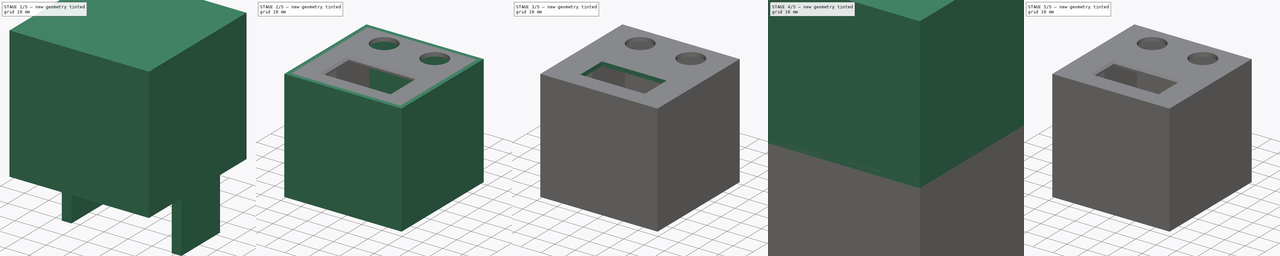
[diagram: build sequence overview — one tinted view per stage of 5, left to right]
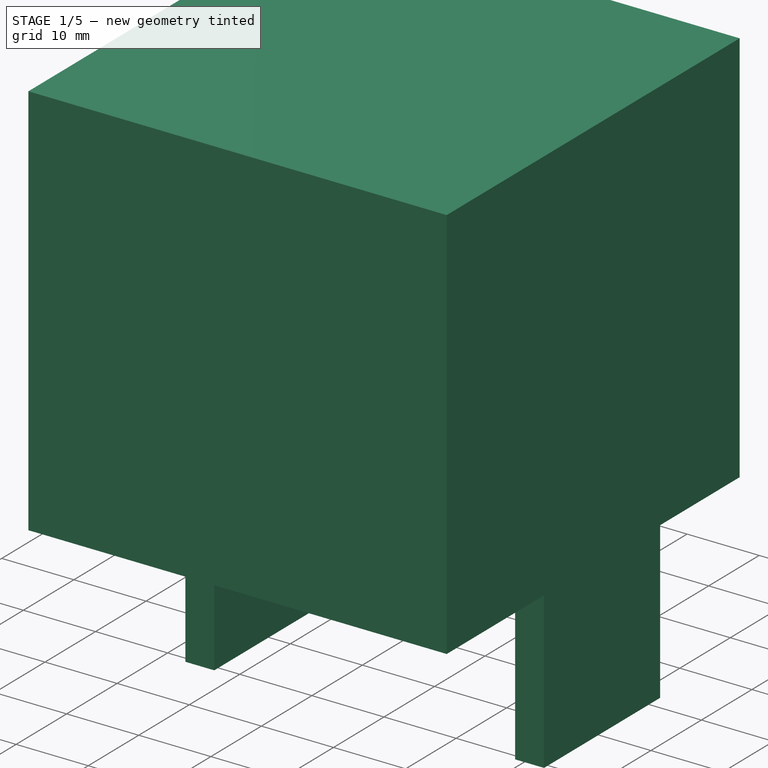
[diagram: stage 1 of 5 — iso view after this stage's code; geometry added in this stage tinted green]
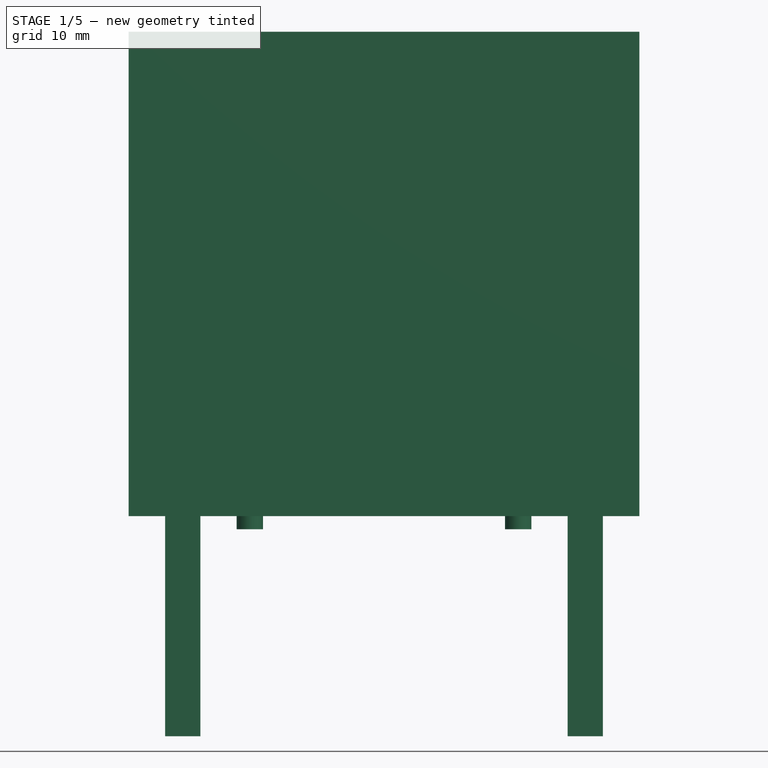
[diagram: stage 1 of 5 — front view after this stage's code; geometry added in this stage tinted green]
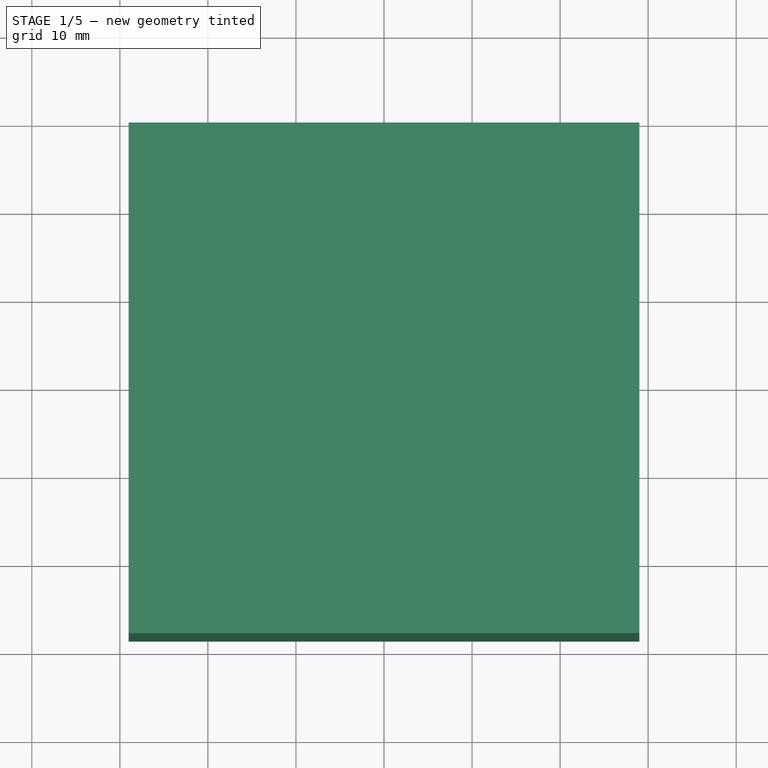
[diagram: stage 1 of 5 — top view after this stage's code; geometry added in this stage tinted green]
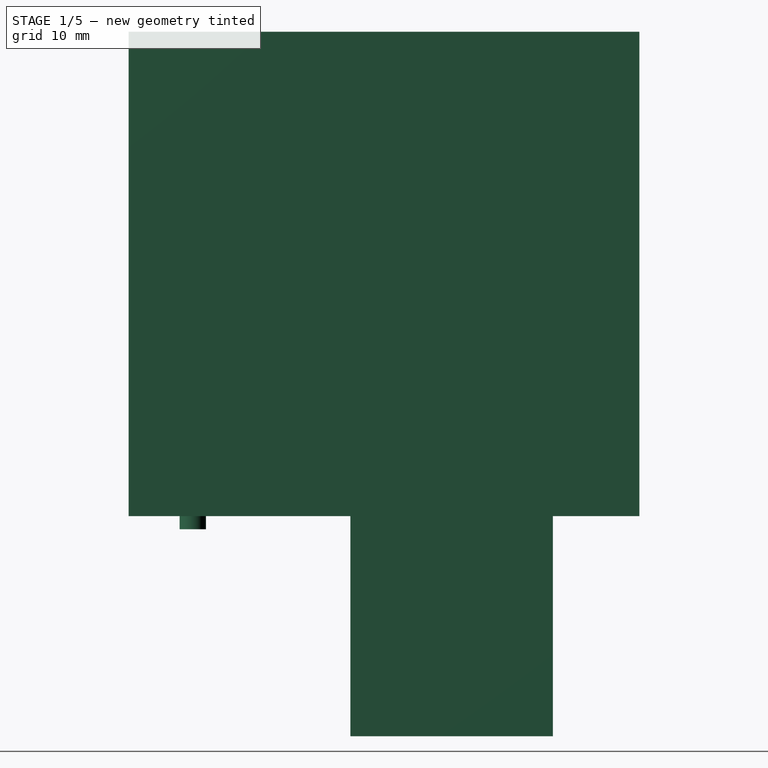
[diagram: stage 1 of 5 — right view after this stage's code; geometry added in this stage tinted green]
FCSTD DOCUMENT  (FreeCAD 0.18R4 (GitTag))
Label: case
License: All rights reserved
LicenseURL: http://en.wikipedia.org/wiki/All_rights_reserved
objects: Sketcher::SketchObject×15, PartDesign::Pocket×9, PartDesign::Pad×6, Part::Box×6, Part::FeaturePython×6, PartDesign::Body×4, PartDesign::Chamfer×2, App::Part×2
note: 63 computed .brp shape members not serialized (recipe doc carries the construction recipe); baked Part::Feature solids carry a one-line shape summary decoded from their .brp

FEATURE [Sketcher::SketchObject] Sketch009
  MapMode = 5
  Support = -> [XY_Plane003]
  sketch-geometry (4):
    g0: LineSegment StartX=-27 StartY=27 StartZ=0 EndX=27 EndY=27 EndZ=0
    g1: LineSegment StartX=27 StartY=27 StartZ=0 EndX=27 EndY=-27 EndZ=0
    g2: LineSegment StartX=27 StartY=-27 StartZ=0 EndX=-27 EndY=-27 EndZ=0
    g3: LineSegment StartX=-27 StartY=-27 StartZ=0 EndX=-27 EndY=27 EndZ=0
  constraints (10):
    c: Coincident(g0,g1)
    c: Coincident(g1,g2)
    c: Coincident(g2,g3)
    c: Coincident(g3,g0)
    c: Horizontal(g2)
    c: Vertical(g1)
    c: Symmetric(g0,g0,g-2)
    c: Symmetric(g0,g2,g-1)
    c: DistanceX(g0,g0) = 54
    c: DistanceY(g2,g0) = 54
FEATURE [PartDesign::Pad] Pad002
  Length = 2
  Length2 = 100
  Profile = -> Sketch009
  Refine = true
  Type = 0
FEATURE [Sketcher::SketchObject] Sketch008
  MapMode = 5
  Placement = pos=(0,0,2) rot=(0,0,1;0rad)
  Support = -> [Pad002]
  sketch-geometry (11):
    g0: Circle CenterX=-12.5 CenterY=18 CenterZ=0 NormalX=0 NormalY=0 NormalZ=1 AngleXU=0 Radius=6.25
    g1: Circle CenterX=12.5 CenterY=18 CenterZ=0 NormalX=0 NormalY=0 NormalZ=1 AngleXU=0 Radius=6.25
    g2: LineSegment [constr] StartX=-12.5 StartY=18 StartZ=0 EndX=12.5 EndY=18 EndZ=0
    g3: LineSegment [constr] StartX=-15.24 StartY=6.23 StartZ=0 EndX=15.24 EndY=6.23 EndZ=0
    g4: LineSegment [constr] StartX=15.24 StartY=6.23 StartZ=0 EndX=15.24 EndY=-21.71 EndZ=0
    g5: LineSegment [constr] StartX=15.24 StartY=-21.71 StartZ=0 EndX=-15.24 EndY=-21.71 EndZ=0
    g6: LineSegment [constr] StartX=-15.24 StartY=-21.71 StartZ=0 EndX=-15.24 EndY=6.23 EndZ=0
    g7: LineSegment StartX=-16.5 StartY=-1 StartZ=0 EndX=16.5 EndY=-1 EndZ=0
    g8: LineSegment StartX=16.5 StartY=-1 StartZ=0 EndX=16.5 EndY=-19.3 EndZ=0
    g9: LineSegment StartX=16.5 StartY=-19.3 StartZ=0 EndX=-16.5 EndY=-19.3 EndZ=0
    g10: LineSegment StartX=-16.5 StartY=-19.3 StartZ=0 EndX=-16.5 EndY=-1 EndZ=0
  constraints (29):
    c: Diameter(g0) = 12.5
    c: DistanceY(g-1,g0) = 18
    c: Equal(g0,g1)
    c: DistanceX(g2,g2) = 25
    c: Coincident(g2,g0)
    c: Coincident(g2,g1)
    c: Symmetric(g0,g1,g-2)
    c: Coincident(g3,g4)
    c: Coincident(g4,g5)
    c: Coincident(g5,g6)
    c: Coincident(g6,g3)
    c: Horizontal(g5)
    c: Vertical(g4)
    c: Vertical(g6)
    c: DistanceX(g3,g3) = 30.48
    c: DistanceY(g5,g3) = 27.94
    c: Symmetric(g3,g3,g-2)
    c: Coincident(g7,g8)
    c: Coincident(g8,g9)
    c: Coincident(g9,g10)
    c: Coincident(g10,g7)
    c: Horizontal(g9)
    c: Vertical(g8)
    c: Vertical(g10)
    c: Symmetric(g7,g7,g-2)
    c: DistanceX(g7,g7) = 33
    c: DistanceY(g9,g7) = 18.3
    c: DistanceY(g7,g-1) = 1
    c: DistanceY(g-1,g3) = 6.23
FEATURE [PartDesign::Pocket] Pocket006
  BaseFeature = -> Pad002
  Length = 2
  Length2 = 100
  Profile = -> Sketch008
  Refine = true
  Type = 0
FEATURE [Sketcher::SketchObject] Sketch010
  MapMode = 5
  Support = -> [XY_Plane004]
  sketch-geometry (4):
    g0: LineSegment StartX=-29 StartY=29 StartZ=0 EndX=29 EndY=29 EndZ=0
    g1: LineSegment StartX=29 StartY=29 StartZ=0 EndX=29 EndY=-29 EndZ=0
    g2: LineSegment StartX=29 StartY=-29 StartZ=0 EndX=-29 EndY=-29 EndZ=0
    g3: LineSegment StartX=-29 StartY=-29 StartZ=0 EndX=-29 EndY=29 EndZ=0
  constraints (10):
    c: Coincident(g0,g1)
    c: Coincident(g1,g2)
    c: Coincident(g2,g3)
    c: Coincident(g3,g0)
    c: Horizontal(g2)
    c: Vertical(g1)
    c: Symmetric(g0,g0,g-2)
    c: Symmetric(g0,g2,g-1)
    c: DistanceX(g0,g0) = 58
    c: DistanceY(g2,g0) = 58
FEATURE [PartDesign::Pad] Pad003
  Length = 55
  Length2 = 100
  Profile = -> Sketch010
  Refine = true
  Type = 0
FEATURE [Sketcher::SketchObject] Sketch013
  MapMode = 5
  Placement = pos=(0,0,0) rot=(1,0,0;3.14159rad)
  Support = -> [Pocket006]
  sketch-geometry (8):
    g0: LineSegment [constr] StartX=-15.24 StartY=21.71 StartZ=0 EndX=15.24 EndY=21.71 EndZ=0
    g1: LineSegment [constr] StartX=15.24 StartY=21.71 StartZ=0 EndX=15.24 EndY=-6.23 EndZ=0
    g2: LineSegment [constr] StartX=15.24 StartY=-6.23 StartZ=0 EndX=-15.24 EndY=-6.23 EndZ=0
    g3: LineSegment [constr] StartX=-15.24 StartY=-6.23 StartZ=0 EndX=-15.24 EndY=21.71 EndZ=0
    g4: Circle CenterX=-15.24 CenterY=21.71 CenterZ=0 NormalX=0 NormalY=0 NormalZ=1 AngleXU=0 Radius=1.5
    g5: Circle CenterX=15.24 CenterY=21.71 CenterZ=0 NormalX=0 NormalY=0 NormalZ=1 AngleXU=0 Radius=1.5
    g6: Circle CenterX=15.24 CenterY=-6.23 CenterZ=0 NormalX=0 NormalY=0 NormalZ=1 AngleXU=0 Radius=1.5
    g7: Circle CenterX=-15.24 CenterY=-6.23 CenterZ=0 NormalX=0 NormalY=0 NormalZ=1 AngleXU=0 Radius=1.5
  constraints (19):
    c: Coincident(g0,g1)
    c: Coincident(g1,g2)
    c: Coincident(g2,g3)
    c: Coincident(g3,g0)
    c: Horizontal(g2)
    c: Vertical(g1)
    c: Vertical(g3)
    c: DistanceX(g0,g0) = 30.48
    c: DistanceY(g2,g0) = 27.94
    c: Symmetric(g0,g0,g-2)
    c: DistanceY(g2,g-1) = 6.23
    c: Coincident(g4,g0)
    c: Coincident(g5,g0)
    c: Coincident(g6,g1)
    c: Coincident(g7,g2)
    c: Diameter(g4) = 3
    c: Equal(g4,g5)
    c: Equal(g4,g7)
    c: Equal(g4,g6)
FEATURE [PartDesign::Pad] Pad004
  BaseFeature = -> Pocket006
  Length = 1.5
  Length2 = 100
  Profile = -> Sketch013
  Refine = true
  Type = 0
FEATURE [Sketcher::SketchObject] Sketch014
  MapMode = 5
  Placement = pos=(0,0,0) rot=(1,0,0;3.14159rad)
  Support = -> [Pad004]
  sketch-geometry (12):
    g0: LineSegment [constr] StartX=-22.86 StartY=1.6 StartZ=0 EndX=22.86 EndY=1.6 EndZ=0
    g1: LineSegment [constr] StartX=22.86 StartY=1.6 StartZ=0 EndX=22.86 EndY=-16.18 EndZ=0
    g2: LineSegment [constr] StartX=22.86 StartY=-16.18 StartZ=0 EndX=-22.86 EndY=-16.18 EndZ=0
    g3: LineSegment [constr] StartX=-22.86 StartY=-16.18 StartZ=0 EndX=-22.86 EndY=1.6 EndZ=0
    g4: LineSegment StartX=-24.86 StartY=3.82 StartZ=0 EndX=-20.86 EndY=3.82 EndZ=0
    g5: LineSegment StartX=-20.86 StartY=3.82 StartZ=0 EndX=-20.86 EndY=-19.18 EndZ=0
    g6: LineSegment StartX=-20.86 StartY=-19.18 StartZ=0 EndX=-24.86 EndY=-19.18 EndZ=0
    g7: LineSegment StartX=-24.86 StartY=-19.18 StartZ=0 EndX=-24.86 EndY=3.82 EndZ=0
    g8: LineSegment StartX=20.86 StartY=3.82 StartZ=0 EndX=24.86 EndY=3.82 EndZ=0
    g9: LineSegment StartX=24.86 StartY=3.82 StartZ=0 EndX=24.86 EndY=-19.18 EndZ=0
    g10: LineSegment StartX=24.86 StartY=-19.18 StartZ=0 EndX=20.86 EndY=-19.18 EndZ=0
    g11: LineSegment StartX=20.86 StartY=-19.18 StartZ=0 EndX=20.86 EndY=3.82 EndZ=0
  constraints (33):
    c: Coincident(g0,g1)
    c: Coincident(g1,g2)
    c: Coincident(g2,g3)
    c: Coincident(g3,g0)
    c: Horizontal(g2)
    c: Vertical(g1)
    c: Vertical(g3)
    c: DistanceX(g0,g0) = 45.72
    c: Symmetric(g0,g0,g-2)
    c: DistanceY(g2,g0) = 17.78
    c: DistanceY(g-1,g0) = 1.6
    c: Coincident(g4,g5)
    c: Coincident(g5,g6)
    c: Coincident(g6,g7)
    c: Coincident(g7,g4)
    c: Horizontal(g6)
    c: Vertical(g5)
    c: Vertical(g7)
    c: Coincident(g8,g9)
    c: Coincident(g9,g10)
    c: Coincident(g10,g11)
    c: Coincident(g11,g8)
    c: Horizontal(g10)
    c: Vertical(g9)
    c: Vertical(g11)
    c: DistanceX(g4,g4) = 4
    c: DistanceY(g5,g4) = 23
    c: DistanceY(g5,g2) = 3
    c: Symmetric(g4,g4,g3)
    c: Equal(g5,g11)
    c: Equal(g6,g10)
    c: Symmetric(g8,g8,g1)
    c: DistanceY(g10,g1) = 3
FEATURE [PartDesign::Pad] Pad005
  BaseFeature = -> Pad004
  Length = 25
  Length2 = 100
  Profile = -> Sketch014
  Refine = true
  Type = 0
FEATURE [PartDesign::Chamfer] Chamfer001
  Base = -> Pad005 [Edge35,Edge36,Edge33,Edge34]
  BaseFeature = -> Pad005
  Size = 1
FEATURE [PartDesign::Body] Body002  label="Lid_SSD"
  Group = -> [Sketch009,Pad002,Sketch008,Pocket006,Sketch013,Pad004,Sketch014,Pad005,Chamfer001]
  Origin = -> Origin005
  Tip = -> Chamfer001
FEATURE [App::Part] Part001  label="SSD"
  Group = -> [Body002,Box003,Box004,Box005,XOR003,XOR004,Body003,XOR005]
  Origin = -> Origin003
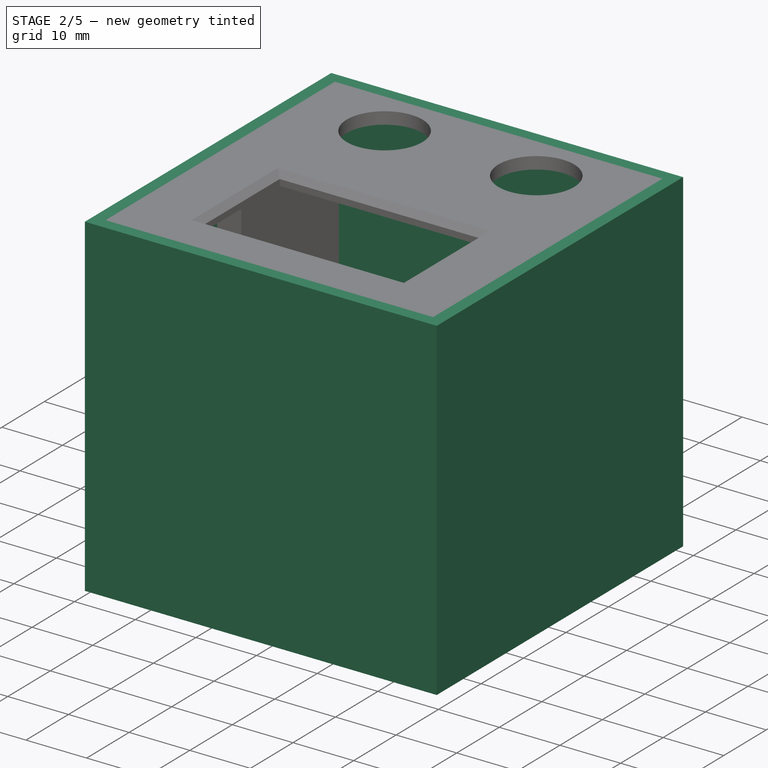
[diagram: stage 2 of 5 — iso view after this stage's code; geometry added in this stage tinted green]
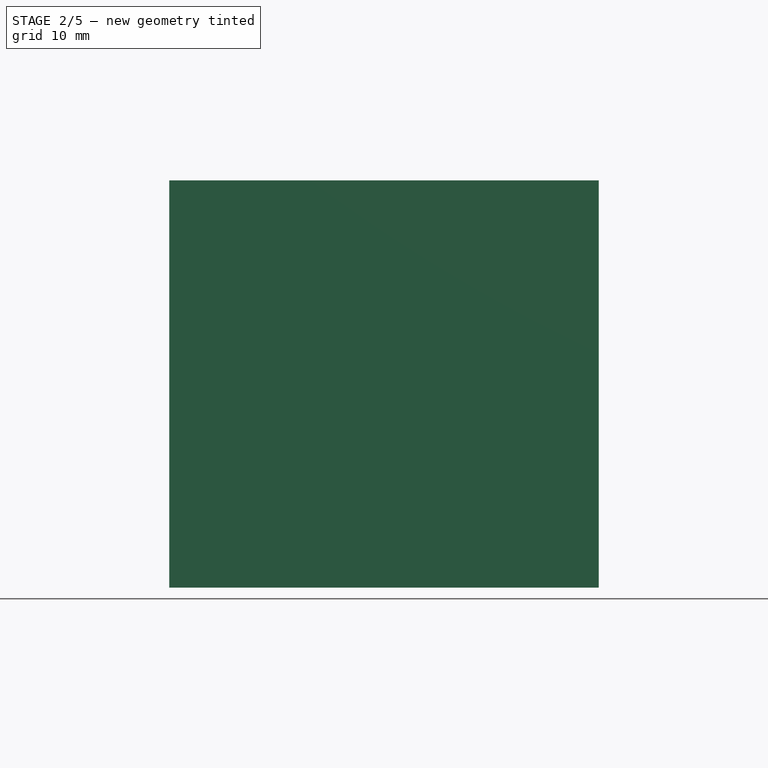
[diagram: stage 2 of 5 — front view after this stage's code; geometry added in this stage tinted green]
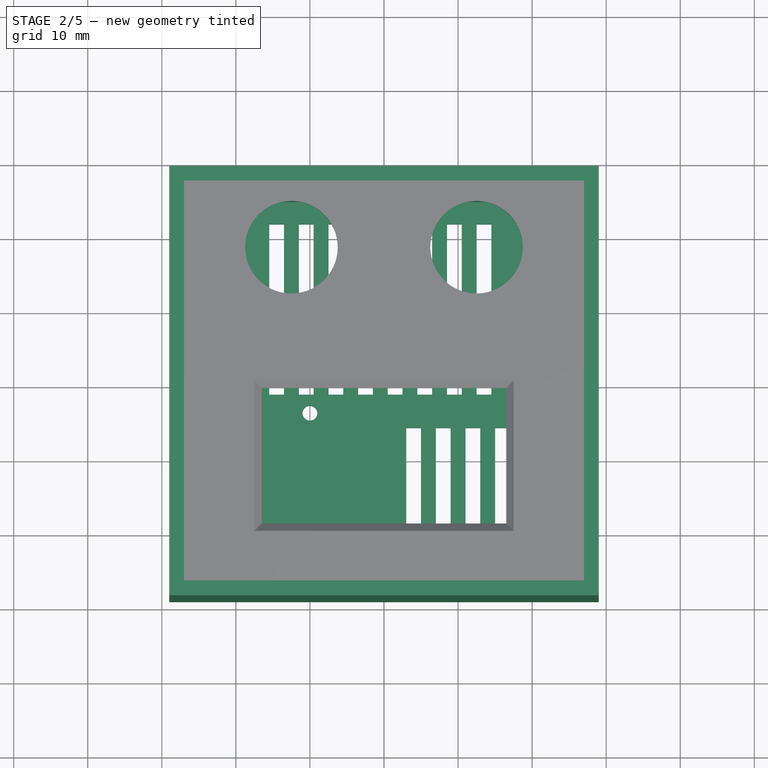
[diagram: stage 2 of 5 — top view after this stage's code; geometry added in this stage tinted green]
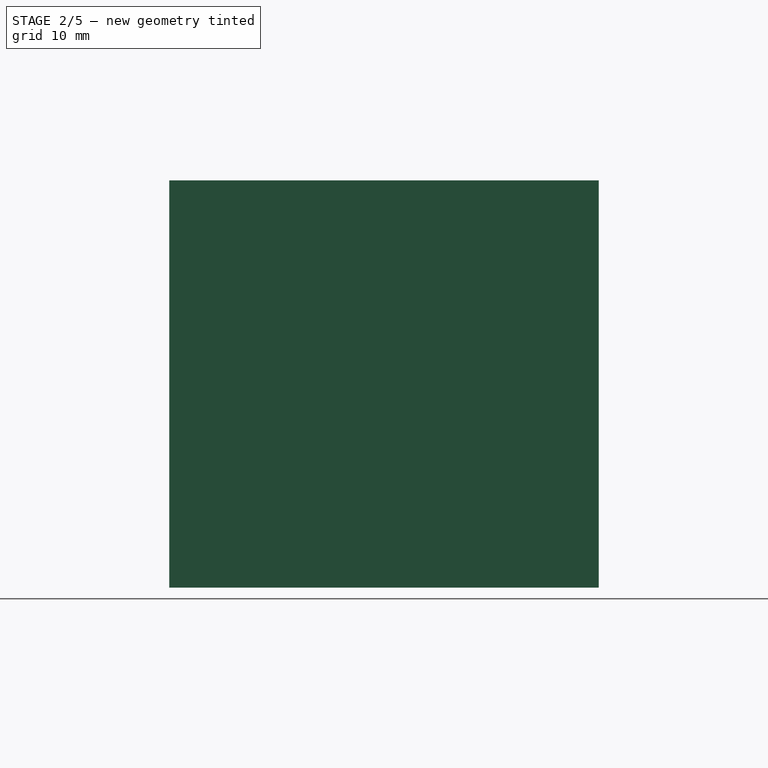
[diagram: stage 2 of 5 — right view after this stage's code; geometry added in this stage tinted green]
FEATURE [PartDesign::Body] Body  label="Lid"
  Group = -> [Sketch,Pad,Sketch001,Pocket,Chamfer,Sketch006,Pocket004]
  Origin = -> Origin
  Tip = -> Pocket004
FEATURE [App::Part] Part  label="Feather"
  Group = -> [Body,Box001,Box002,Box,XOR,XOR001,Body001,XOR002]
  Origin = -> Origin002
FEATURE [Part::Box] Box003  label="Würfel003"
  AttacherType = Attacher::AttachEngine3D
  Height = 40
  Length = 2
  Placement = pos=(25,-6,-40) rot=(0,0,1;0rad)
  Width = 29
FEATURE [Part::Box] Box005  label="Würfel005"
  AttacherType = Attacher::AttachEngine3D
  Height = 40
  Length = 2
  Placement = pos=(-27,-6,-40) rot=(0,0,1;0rad)
  Width = 29
FEATURE [Sketcher::SketchObject] Sketch011
  MapMode = 5
  Placement = pos=(0,0,55) rot=(0,0,1;0rad)
  Support = -> [Pad003]
  sketch-geometry (4):
    g0: LineSegment StartX=-27 StartY=27 StartZ=0 EndX=27 EndY=27 EndZ=0
    g1: LineSegment StartX=27 StartY=27 StartZ=0 EndX=27 EndY=-27 EndZ=0
    g2: LineSegment StartX=27 StartY=-27 StartZ=0 EndX=-27 EndY=-27 EndZ=0
    g3: LineSegment StartX=-27 StartY=-27 StartZ=0 EndX=-27 EndY=27 EndZ=0
  constraints (10):
    c: Coincident(g0,g1)
    c: Coincident(g1,g2)
    c: Coincident(g2,g3)
    c: Coincident(g3,g0)
    c: Horizontal(g2)
    c: Vertical(g1)
    c: Symmetric(g0,g0,g-2)
    c: Symmetric(g0,g2,g-1)
    c: DistanceX(g0,g0) = 54
    c: DistanceY(g2,g0) = 54
FEATURE [PartDesign::Pocket] Pocket007
  BaseFeature = -> Pad003
  Length = 2
  Length2 = 100
  Profile = -> Sketch011
  Refine = true
  Type = 0
FEATURE [Sketcher::SketchObject] Sketch012
  MapMode = 5
  Placement = pos=(0,0,53) rot=(0,0,1;0rad)
  Support = -> [Pocket007]
  sketch-geometry (4):
    g0: LineSegment StartX=-25 StartY=25 StartZ=0 EndX=25 EndY=25 EndZ=0
    g1: LineSegment StartX=25 StartY=25 StartZ=0 EndX=25 EndY=-25 EndZ=0
    g2: LineSegment StartX=25 StartY=-25 StartZ=0 EndX=-25 EndY=-25 EndZ=0
    g3: LineSegment StartX=-25 StartY=-25 StartZ=0 EndX=-25 EndY=25 EndZ=0
  constraints (10):
    c: Coincident(g0,g1)
    c: Coincident(g1,g2)
    c: Coincident(g2,g3)
    c: Coincident(g3,g0)
    c: Horizontal(g2)
    c: Vertical(g1)
    c: Symmetric(g0,g0,g-2)
    c: Symmetric(g0,g2,g-1)
    c: DistanceX(g0,g0) = 50
    c: DistanceY(g2,g0) = 50
FEATURE [PartDesign::Pocket] Pocket008
  BaseFeature = -> Pocket007
  Length = 50
  Length2 = 100
  Profile = -> Sketch012
  Refine = true
  Type = 0
FEATURE [Sketcher::SketchObject] Sketch007
  MapMode = 5
  Placement = pos=(0,0,3) rot=(0,0,1;0rad)
  Support = -> [Pocket008]
  sketch-geometry (59):
    g0: LineSegment [constr] StartX=-17.5 StartY=22 StartZ=0 EndX=17.5 EndY=22 EndZ=0
    g1: LineSegment [constr] StartX=17.5 StartY=22 StartZ=0 EndX=17.5 EndY=-1 EndZ=0
    g2: LineSegment [constr] StartX=17.5 StartY=-1 StartZ=0 EndX=-17.5 EndY=-1 EndZ=0
    g3: LineSegment [constr] StartX=-17.5 StartY=-1 StartZ=0 EndX=-17.5 EndY=22 EndZ=0
    g4: LineSegment [constr] StartX=-20 StartY=-3.5 StartZ=0 EndX=20 EndY=-3.5 EndZ=0
    g5: LineSegment [constr] StartX=20 StartY=-3.5 StartZ=0 EndX=20 EndY=-23.5 EndZ=0
    g6: LineSegment [constr] StartX=20 StartY=-23.5 StartZ=0 EndX=-20 EndY=-23.5 EndZ=0
    g7: LineSegment [constr] StartX=-20 StartY=-23.5 StartZ=0 EndX=-20 EndY=-3.5 EndZ=0
    g8: LineSegment StartX=17 StartY=-20.5 StartZ=0 EndX=15 EndY=-20.5 EndZ=0
    g9: LineSegment StartX=15 StartY=-20.5 StartZ=0 EndX=15 EndY=-5.5 EndZ=0
    g10: LineSegment StartX=15 StartY=-5.5 StartZ=0 EndX=17 EndY=-5.5 EndZ=0
    g11: LineSegment StartX=17 StartY=-5.5 StartZ=0 EndX=17 EndY=-20.5 EndZ=0
    g12: LineSegment StartX=11 StartY=-5.5 StartZ=0 EndX=13 EndY=-5.5 EndZ=0
    g13: LineSegment StartX=13 StartY=-5.5 StartZ=0 EndX=13 EndY=-20.5 EndZ=0
    g14: LineSegment StartX=13 StartY=-20.5 StartZ=0 EndX=11 EndY=-20.5 EndZ=0
    g15: LineSegment StartX=11 StartY=-20.5 StartZ=0 EndX=11 EndY=-5.5 EndZ=0
    g16: LineSegment StartX=7 StartY=-5.5 StartZ=0 EndX=9 EndY=-5.5 EndZ=0
    g17: LineSegment StartX=9 StartY=-5.5 StartZ=0 EndX=9 EndY=-20.5 EndZ=0
    g18: LineSegment StartX=9 StartY=-20.5 StartZ=0 EndX=7 EndY=-20.5 EndZ=0
    g19: LineSegment StartX=7 StartY=-20.5 StartZ=0 EndX=7 EndY=-5.5 EndZ=0
    g20: LineSegment StartX=3 StartY=-5.5 StartZ=0 EndX=5 EndY=-5.5 EndZ=0
    g21: LineSegment StartX=5 StartY=-5.5 StartZ=0 EndX=5 EndY=-20.5 EndZ=0
    g22: LineSegment StartX=5 StartY=-20.5 StartZ=0 EndX=3 EndY=-20.5 EndZ=0
    g23: LineSegment StartX=3 StartY=-20.5 StartZ=0 EndX=3 EndY=-5.5 EndZ=0
    g24: LineSegment StartX=12.5 StartY=22 StartZ=0 EndX=14.5 EndY=22 EndZ=0
    g25: LineSegment StartX=14.5 StartY=22 StartZ=0 EndX=14.5 EndY=-1 EndZ=0
    g26: LineSegment StartX=14.5 StartY=-1 StartZ=0 EndX=12.5 EndY=-1 EndZ=0
    g27: LineSegment StartX=12.5 StartY=-1 StartZ=0 EndX=12.5 EndY=22 EndZ=0
    g28: LineSegment StartX=8.5 StartY=22 StartZ=0 EndX=10.5 EndY=22 EndZ=0
    g29: LineSegment StartX=10.5 StartY=22 StartZ=0 EndX=10.5 EndY=-1 EndZ=0
    g30: LineSegment StartX=10.5 StartY=-1 StartZ=0 EndX=8.5 EndY=-1 EndZ=0
    g31: LineSegment StartX=8.5 StartY=-1 StartZ=0 EndX=8.5 EndY=22 EndZ=0
    g32: LineSegment StartX=4.5 StartY=22 StartZ=0 EndX=6.5 EndY=22 EndZ=0
    g33: LineSegment StartX=6.5 StartY=22 StartZ=0 EndX=6.5 EndY=-1 EndZ=0
    g34: LineSegment StartX=6.5 StartY=-1 StartZ=0 EndX=4.5 EndY=-1 EndZ=0
    g35: LineSegment StartX=4.5 StartY=-1 StartZ=0 EndX=4.5 EndY=22 EndZ=0
    g36: LineSegment StartX=0.5 StartY=22 StartZ=0 EndX=2.5 EndY=22 EndZ=0
    g37: LineSegment StartX=2.5 StartY=22 StartZ=0 EndX=2.5 EndY=-1 EndZ=0
    g38: LineSegment StartX=2.5 StartY=-1 StartZ=0 EndX=0.5 EndY=-1 EndZ=0
    g39: LineSegment StartX=0.5 StartY=-1 StartZ=0 EndX=0.5 EndY=22 EndZ=0
    g40: LineSegment StartX=-3.5 StartY=22 StartZ=0 EndX=-1.5 EndY=22 EndZ=0
    g41: LineSegment StartX=-1.5 StartY=22 StartZ=0 EndX=-1.5 EndY=-1 EndZ=0
    g42: LineSegment StartX=-1.5 StartY=-1 StartZ=0 EndX=-3.5 EndY=-1 EndZ=0
    g43: LineSegment StartX=-3.5 StartY=-1 StartZ=0 EndX=-3.5 EndY=22 EndZ=0
    g44: LineSegment StartX=-7.5 StartY=22 StartZ=0 EndX=-5.5 EndY=22 EndZ=0
    g45: LineSegment StartX=-5.5 StartY=22 StartZ=0 EndX=-5.5 EndY=-1 EndZ=0
    g46: LineSegment StartX=-5.5 StartY=-1 StartZ=0 EndX=-7.5 EndY=-1 EndZ=0
    g47: LineSegment StartX=-7.5 StartY=-1 StartZ=0 EndX=-7.5 EndY=22 EndZ=0
    g48: LineSegment StartX=-11.5 StartY=22 StartZ=0 EndX=-9.5 EndY=22 EndZ=0
    g49: LineSegment StartX=-9.5 StartY=22 StartZ=0 EndX=-9.5 EndY=-1 EndZ=0
    g50: LineSegment StartX=-9.5 StartY=-1 StartZ=0 EndX=-11.5 EndY=-1 EndZ=0
    g51: LineSegment StartX=-11.5 StartY=-1 StartZ=0 EndX=-11.5 EndY=22 EndZ=0
    g52: LineSegment StartX=-15.5 StartY=22 StartZ=0 EndX=-13.5 EndY=22 EndZ=0
    g53: LineSegment StartX=-13.5 StartY=22 StartZ=0 EndX=-13.5 EndY=-1 EndZ=0
    g54: LineSegment StartX=-13.5 StartY=-1 StartZ=0 EndX=-15.5 EndY=-1 EndZ=0
    g55: LineSegment StartX=-15.5 StartY=-1 StartZ=0 EndX=-15.5 EndY=22 EndZ=0
    g56: Circle CenterX=20 CenterY=-13.5 CenterZ=0 NormalX=0 NormalY=0 NormalZ=1 AngleXU=0 Radius=1
    g57: Circle CenterX=-10 CenterY=-23.5 CenterZ=0 NormalX=0 NormalY=0 NormalZ=1 AngleXU=0 Radius=1
    g58: Circle CenterX=-10 CenterY=-3.5 CenterZ=0 NormalX=0 NormalY=0 NormalZ=1 AngleXU=0 Radius=1
  constraints (175):
    c: Coincident(g0,g1)
    c: Coincident(g1,g2)
    c: Coincident(g2,g3)
    c: Coincident(g3,g0)
    c: Horizontal(g2)
    c: Vertical(g1)
    c: Vertical(g3)
    c: Coincident(g4,g5)
    c: Coincident(g5,g6)
    c: Coincident(g6,g7)
    c: Coincident(g7,g4)
    c: Vertical(g5)
    c: Vertical(g7)
    c: DistanceY(g5,g4) = 20
    c: DistanceX(g4,g4) = 40
    c: DistanceY(g1,g0) = 23
    c: DistanceX(g0,g0) = 35
    c: Symmetric(g0,g0,g-2)
    c: DistanceY(g-1,g0) = 22
    c: Coincident(g8,g9)
    c: Coincident(g9,g10)
    c: Coincident(g10,g11)
    c: Coincident(g11,g8)
    c: Horizontal(g8)
    c: Horizontal(g10)
    c: Vertical(g9)
    c: Vertical(g11)
    c: DistanceX(g9,g10) = 2
    c: Coincident(g12,g13)
    c: Coincident(g13,g14)
    c: Coincident(g14,g15)
    c: Coincident(g15,g12)
    c: Horizontal(g12)
    c: Horizontal(g14)
    c: Vertical(g13)
    c: Vertical(g15)
    c: Equal(g10,g12)
    c: Equal(g9,g15)
    c: DistanceX(g12,g9) = 2
    c: DistanceY(g8,g10) = 15
    c: Coincident(g16,g17)
    c: Coincident(g17,g18)
    c: Coincident(g18,g19)
    c: Coincident(g19,g16)
    c: Horizontal(g16)
    c: Horizontal(g18)
    c: Vertical(g17)
    c: Vertical(g19)
    c: Equal(g15,g17)
    c: Equal(g12,g16)
    c: DistanceX(g16,g12) = 2
    c: Coincident(g20,g21)
    c: Coincident(g21,g22)
    c: Coincident(g22,g23)
    c: Coincident(g23,g20)
    c: Horizontal(g20)
    c: Vertical(g21)
    c: Vertical(g23)
    c: Equal(g20,g18)
    c: Equal(g19,g21)
    c: DistanceX(g20,g16) = 2
    c: Equal(g21,g23)
    c: Coincident(g24,g25)
    c: Coincident(g25,g26)
    c: Coincident(g26,g27)
    c: Coincident(g27,g24)
    c: Horizontal(g24)
    c: Horizontal(g26)
    c: Vertical(g25)
    c: Vertical(g27)
    c: DistanceX(g24,g24) = 2
    c: DistanceY(g25,g24) = 23
    c: DistanceY(g0,g24) = 0
    c: DistanceX(g24,g0) = 3
    c: Coincident(g28,g29)
    c: Coincident(g29,g30)
    c: Coincident(g30,g31)
    c: Coincident(g31,g28)
    c: Horizontal(g28)
    c: Horizontal(g30)
    c: Vertical(g29)
    c: Vertical(g31)
    c: Coincident(g32,g33)
    c: Coincident(g33,g34)
    c: Coincident(g34,g35)
    c: Coincident(g35,g32)
    c: Horizontal(g32)
    c: Horizontal(g34)
    c: Vertical(g33)
    c: Vertical(g35)
    c: Coincident(g36,g37)
    c: Coincident(g37,g38)
    c: Coincident(g38,g39)
    c: Coincident(g39,g36)
    c: Horizontal(g36)
    c: Horizontal(g38)
    c: Vertical(g37)
    c: Vertical(g39)
    c: Coincident(g40,g41)
    c: Coincident(g41,g42)
    c: Coincident(g42,g43)
    c: Coincident(g43,g40)
    c: Horizontal(g40)
    c: Horizontal(g42)
    c: Vertical(g41)
    c: Vertical(g43)
    c: Equal(g24,g28)
    c: Equal(g24,g32)
    c: Equal(g24,g36)
    c: Equal(g24,g40)
    c: Equal(g27,g29)
    c: Equal(g27,g33)
    c: Equal(g27,g37)
    c: Equal(g27,g41)
    c: DistanceY(g0,g28) = 0
    c: DistanceX(g36,g32) = 2
    c: DistanceX(g32,g28) = 2
    c: DistanceX(g28,g24) = 2
    c: DistanceX(g40,g36) = 2
    c: DistanceY(g0,g32) = 0
    c: DistanceY(g0,g40) = 0
    c: Coincident(g44,g45)
    c: Coincident(g45,g46)
    c: Coincident(g46,g47)
    c: Coincident(g47,g44)
    c: Horizontal(g44)
    c: Horizontal(g46)
    c: Vertical(g45)
    c: Vertical(g47)
    c: Coincident(g48,g49)
    c: Coincident(g49,g50)
    c: Coincident(g50,g51)
    c: Coincident(g51,g48)
    c: Horizontal(g48)
    c: Horizontal(g50)
    c: Vertical(g49)
    c: Vertical(g51)
    c: Coincident(g52,g53)
    c: Coincident(g53,g54)
    c: Coincident(g54,g55)
    c: Coincident(g55,g52)
    c: Horizontal(g52)
    c: Horizontal(g54)
    c: Vertical(g53)
    c: Vertical(g55)
    c: Equal(g44,g40)
    c: DistanceY(g32,g36) = 0
    c: Equal(g40,g44)
    c: Equal(g40,g48)
    c: Equal(g40,g52)
    c: DistanceX(g44,g40) = 2
    c: DistanceX(g48,g44) = 2
    c: DistanceX(g52,g48) = 2
    c: DistanceY(g40,g44) = 0
    c: DistanceY(g44,g48) = 0
    c: DistanceY(g48,g52) = 0
    c: Equal(g43,g45)
    c: Equal(g43,g49)
    c: Equal(g43,g53)
    c: Equal(g5,g7)
    c: DistanceX(g10,g4) = 3
    c: Symmetric(g4,g4,g-2)
    c: DistanceY(g5,g8) = 3
    c: DistanceY(g12,g9) = 0
    c: DistanceY(g16,g12) = 0
    c: DistanceY(g20,g16) = 0
    c: DistanceY(g4,g-1) = 3.5
    c: Symmetric(g5,g5,g56)
    c: Diameter(g56) = 2
    c: PointOnObject(g57,g6)
    c: PointOnObject(g58,g4)
    c: DistanceX(g4,g58) = 10
    c: DistanceX(g6,g57) = 10
    c: Equal(g56,g57)
    c: Equal(g56,g58)
FEATURE [PartDesign::Pocket] Pocket005
  BaseFeature = -> Pocket008
  Length = 3
  Length2 = 100
  Profile = -> Sketch007
  Refine = true
  Type = 0
FEATURE [PartDesign::Body] Body003
  Group = -> [Sketch010,Pad003,Sketch011,Pocket007,Sketch012,Pocket008,Sketch007,Pocket005]
  Origin = -> Origin004
  Placement = pos=(0,0,-53) rot=(0,0,1;0rad)
  Tip = -> Pocket005
FEATURE [Part::FeaturePython] XOR003  # WARN: FeaturePython — macro-defined, semantics opaque (R4)
  Objects = -> [Box005,Body003]
  Tolerance = 0
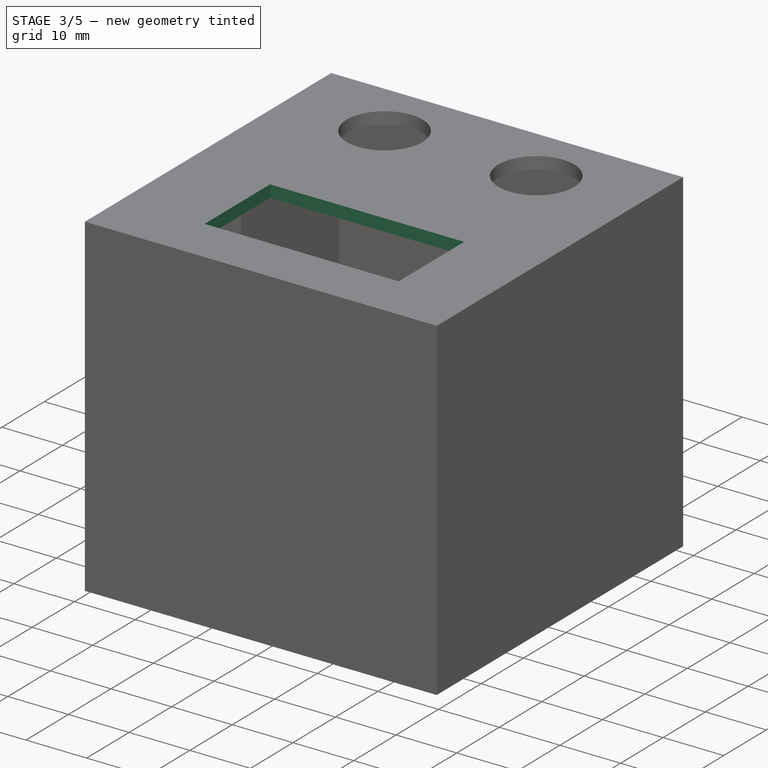
[diagram: stage 3 of 5 — iso view after this stage's code; geometry added in this stage tinted green]
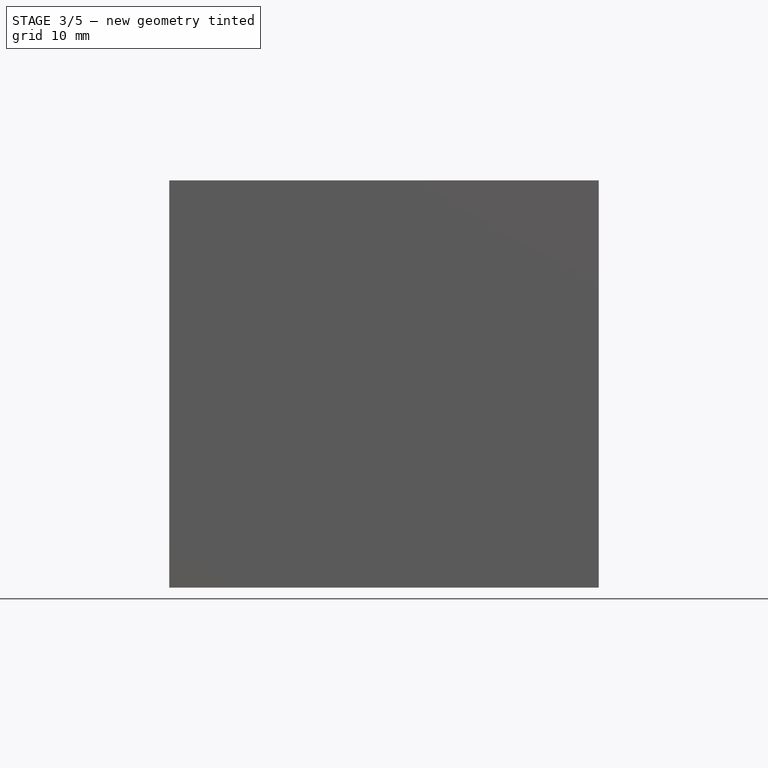
[diagram: stage 3 of 5 — front view after this stage's code; geometry added in this stage tinted green]
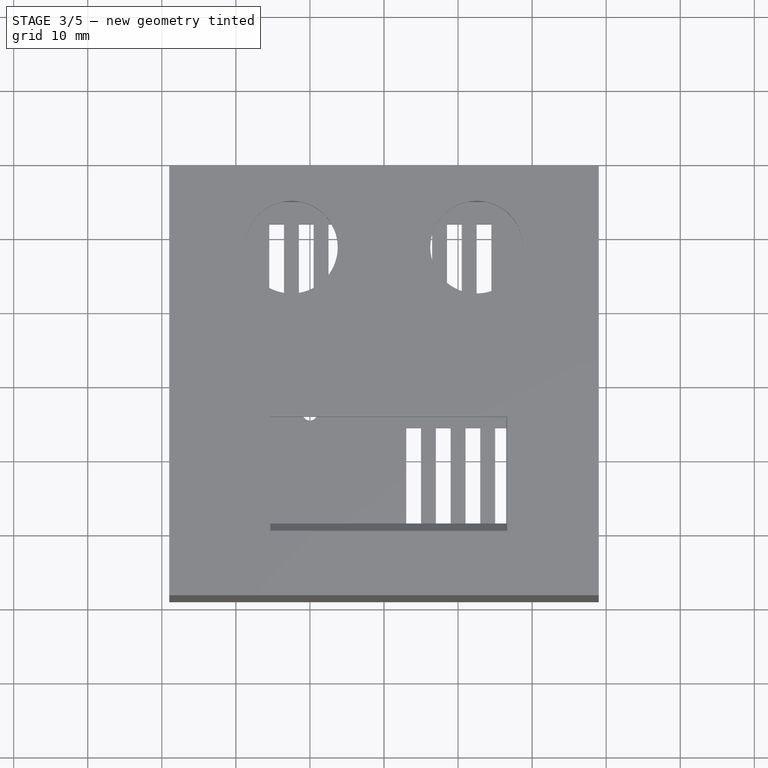
[diagram: stage 3 of 5 — top view after this stage's code; geometry added in this stage tinted green]
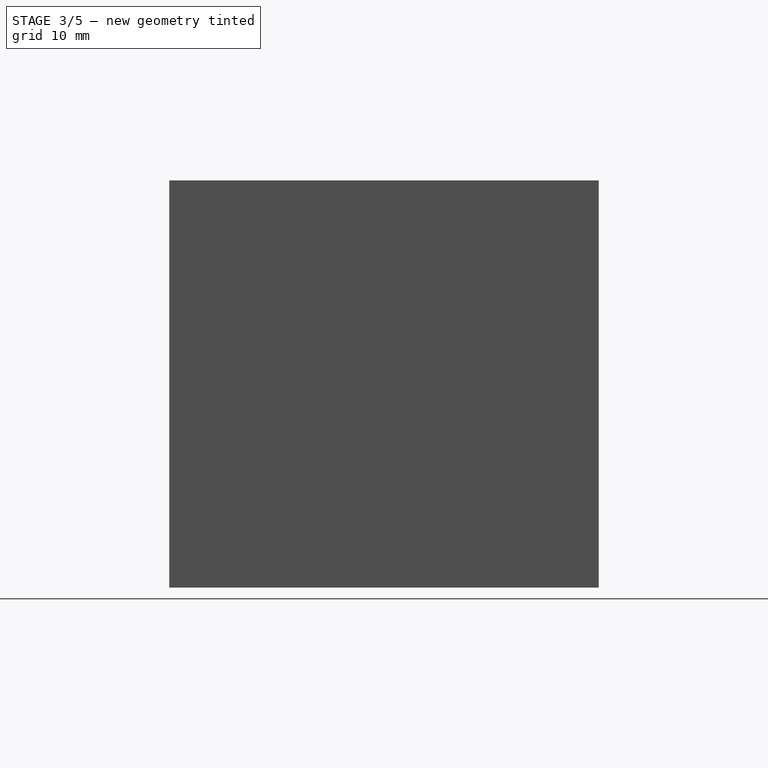
[diagram: stage 3 of 5 — right view after this stage's code; geometry added in this stage tinted green]
FEATURE [Sketcher::SketchObject] Sketch
  MapMode = 5
  Support = -> [XY_Plane]
  sketch-geometry (4):
    g0: LineSegment StartX=-27 StartY=27 StartZ=0 EndX=27 EndY=27 EndZ=0
    g1: LineSegment StartX=27 StartY=27 StartZ=0 EndX=27 EndY=-27 EndZ=0
    g2: LineSegment StartX=27 StartY=-27 StartZ=0 EndX=-27 EndY=-27 EndZ=0
    g3: LineSegment StartX=-27 StartY=-27 StartZ=0 EndX=-27 EndY=27 EndZ=0
  constraints (10):
    c: Coincident(g0,g1)
    c: Coincident(g1,g2)
    c: Coincident(g2,g3)
    c: Coincident(g3,g0)
    c: Horizontal(g2)
    c: Vertical(g1)
    c: Symmetric(g0,g0,g-2)
    c: Symmetric(g0,g2,g-1)
    c: DistanceX(g0,g0) = 54
    c: DistanceY(g2,g0) = 54
FEATURE [PartDesign::Pad] Pad
  Length = 2
  Length2 = 100
  Profile = -> Sketch
  Refine = true
  Type = 0
FEATURE [Sketcher::SketchObject] Sketch001
  MapMode = 5
  Placement = pos=(0,0,2) rot=(0,0,1;0rad)
  Support = -> [Pad]
  sketch-geometry (15):
    g0: LineSegment [constr] StartX=-22.86 StartY=-4 StartZ=0 EndX=22.86 EndY=-4 EndZ=0
    g1: LineSegment [constr] StartX=22.86 StartY=-4 StartZ=0 EndX=22.86 EndY=-21.78 EndZ=0
    g2: LineSegment [constr] StartX=22.86 StartY=-21.78 StartZ=0 EndX=-22.86 EndY=-21.78 EndZ=0
    g3: LineSegment [constr] StartX=-22.86 StartY=-21.78 StartZ=0 EndX=-22.86 EndY=-4 EndZ=0
    g4: Circle CenterX=-22.86 CenterY=-4 CenterZ=0 NormalX=0 NormalY=0 NormalZ=1 AngleXU=0 Radius=1.27
    g5: Circle CenterX=22.86 CenterY=-4 CenterZ=0 NormalX=0 NormalY=0 NormalZ=1 AngleXU=0 Radius=1.27
    g6: Circle CenterX=22.86 CenterY=-21.78 CenterZ=0 NormalX=0 NormalY=0 NormalZ=1 AngleXU=0 Radius=1.27
    g7: Circle CenterX=-22.86 CenterY=-21.78 CenterZ=0 NormalX=0 NormalY=0 NormalZ=1 AngleXU=0 Radius=1.27
    g8: Circle CenterX=-12.5 CenterY=18 CenterZ=0 NormalX=0 NormalY=0 NormalZ=1 AngleXU=0 Radius=6.25
    g9: LineSegment StartX=-15.36 StartY=-4.89 StartZ=0 EndX=16.64 EndY=-4.89 EndZ=0
    g10: LineSegment StartX=16.64 StartY=-4.89 StartZ=0 EndX=16.64 EndY=-20.89 EndZ=0
    g11: LineSegment StartX=16.64 StartY=-20.89 StartZ=0 EndX=-15.36 EndY=-20.89 EndZ=0
    g12: LineSegment StartX=-15.36 StartY=-20.89 StartZ=0 EndX=-15.36 EndY=-4.89 EndZ=0
    g13: Circle CenterX=12.5 CenterY=18 CenterZ=0 NormalX=0 NormalY=0 NormalZ=1 AngleXU=0 Radius=6.25
    g14: LineSegment [constr] StartX=-12.5 StartY=18 StartZ=0 EndX=12.5 EndY=18 EndZ=0
  constraints (38):
    c: Coincident(g0,g1)
    c: Coincident(g1,g2)
    c: Coincident(g2,g3)
    c: Coincident(g3,g0)
    c: Horizontal(g2)
    c: Vertical(g1)
    c: Vertical(g3)
    c: DistanceX(g0,g0) = 45.72
    c: DistanceY(g2,g0) = 17.78
    c: Coincident(g4,g0)
    c: Coincident(g5,g0)
    c: Coincident(g6,g1)
    c: Coincident(g7,g2)
    c: Symmetric(g4,g5,g-2)
    c: DistanceY(g5,g-1) = 4
    c: Equal(g4,g5)
    c: Equal(g4,g7)
    c: Equal(g4,g6)
    c: Diameter(g4) = 2.54
    c: Diameter(g8) = 12.5
    c: DistanceY(g-1,g8) = 18
    c: Coincident(g9,g10)
    c: Coincident(g10,g11)
    c: Coincident(g11,g12)
    c: Coincident(g12,g9)
    c: Horizontal(g9)
    c: Horizontal(g11)
    c: Vertical(g10)
    c: Vertical(g12)
    c: DistanceX(g9,g9) = 32
    c: DistanceY(g11,g9) = 16
    c: DistanceX(g4,g9) = 7.5
    c: DistanceY(g7,g11) = 0.89
    c: Equal(g8,g13)
    c: DistanceX(g14,g14) = 25
    c: Coincident(g14,g8)
    c: Coincident(g14,g13)
    c: Symmetric(g8,g13,g-2)
FEATURE [PartDesign::Pocket] Pocket
  BaseFeature = -> Pad
  Length = 2
  Length2 = 100
  Profile = -> Sketch001
  Refine = true
  Type = 0
FEATURE [Part::Box] Box004  label="Würfel004"
  AttacherType = Attacher::AttachEngine3D
  Height = 9
  Length = 2
  Placement = pos=(-29,1,-32) rot=(0,0,1;0rad)
  Width = 13
FEATURE [Part::FeaturePython] XOR004  # WARN: FeaturePython — macro-defined, semantics opaque (R4)
  Objects = -> [Box003,XOR003]
  Tolerance = 0
FEATURE [Part::FeaturePython] XOR005  label="Case001"  # WARN: FeaturePython — macro-defined, semantics opaque (R4)
  Objects = -> [Box004,XOR004]
  Tolerance = 0
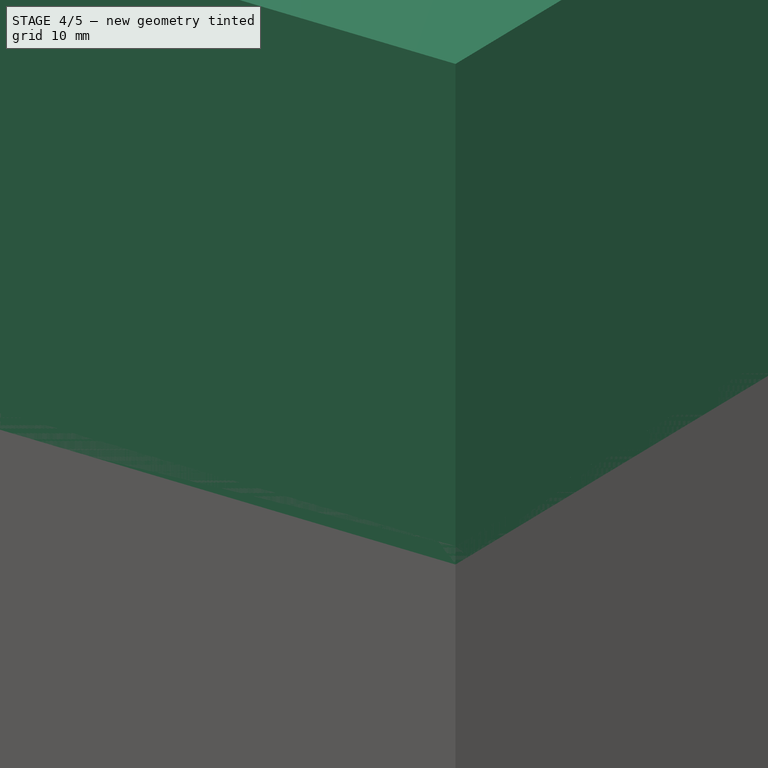
[diagram: stage 4 of 5 — iso view after this stage's code; geometry added in this stage tinted green]
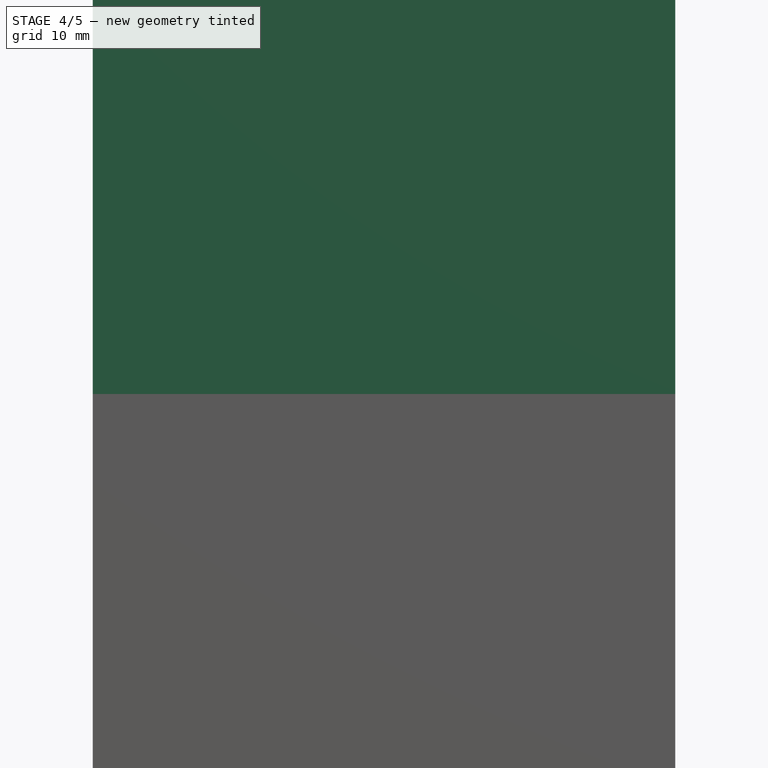
[diagram: stage 4 of 5 — front view after this stage's code; geometry added in this stage tinted green]
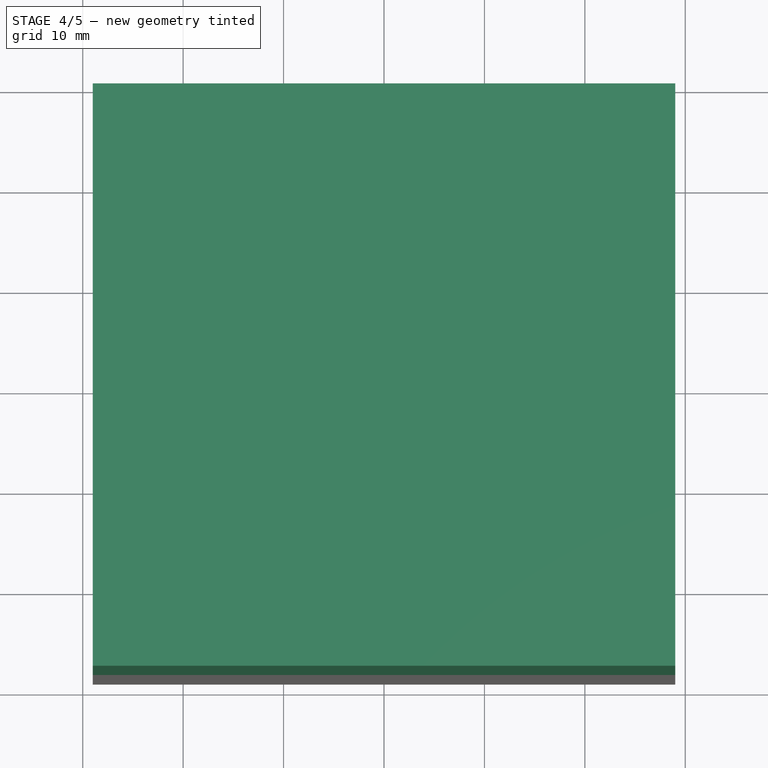
[diagram: stage 4 of 5 — top view after this stage's code; geometry added in this stage tinted green]
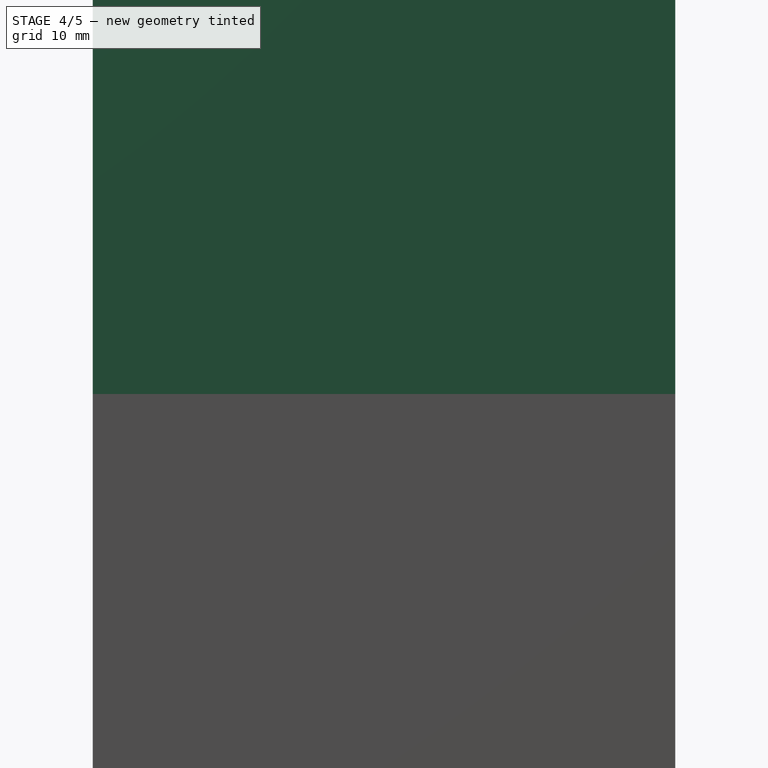
[diagram: stage 4 of 5 — right view after this stage's code; geometry added in this stage tinted green]
FEATURE [PartDesign::Chamfer] Chamfer
  Base = -> Pocket [Edge27,Edge28,Edge25,Edge26]
  BaseFeature = -> Pocket
  Size = 1
FEATURE [Sketcher::SketchObject] Sketch002
  MapMode = 5
  Support = -> [XY_Plane001]
  sketch-geometry (4):
    g0: LineSegment StartX=-29 StartY=29 StartZ=0 EndX=29 EndY=29 EndZ=0
    g1: LineSegment StartX=29 StartY=29 StartZ=0 EndX=29 EndY=-29 EndZ=0
    g2: LineSegment StartX=29 StartY=-29 StartZ=0 EndX=-29 EndY=-29 EndZ=0
    g3: LineSegment StartX=-29 StartY=-29 StartZ=0 EndX=-29 EndY=29 EndZ=0
  constraints (10):
    c: Coincident(g0,g1)
    c: Coincident(g1,g2)
    c: Coincident(g2,g3)
    c: Coincident(g3,g0)
    c: Horizontal(g2)
    c: Vertical(g1)
    c: Symmetric(g0,g0,g-2)
    c: Symmetric(g0,g2,g-1)
    c: DistanceX(g0,g0) = 58
    c: DistanceY(g2,g0) = 58
FEATURE [PartDesign::Pad] Pad001
  Length = 55
  Length2 = 100
  Profile = -> Sketch002
  Refine = true
  Type = 0
FEATURE [PartDesign::Body] Body001
  Group = -> [Sketch002,Pad001,Sketch003,Pocket001,Sketch004,Pocket002,Sketch005,Pocket003]
  Origin = -> Origin001
  Placement = pos=(0,0,-53) rot=(0,0,1;0rad)
  Tip = -> Pocket003
FEATURE [Part::Box] Box  label="Würfel"
  AttacherType = Attacher::AttachEngine3D
  Height = 40
  Length = 2
  Placement = pos=(-27,-25,-40) rot=(0,0,1;0rad)
  Width = 29
FEATURE [Part::Box] Box001  label="Würfel001"
  AttacherType = Attacher::AttachEngine3D
  Height = 40
  Length = 2
  Placement = pos=(25,-25,-40) rot=(0,0,1;0rad)
  Width = 29
FEATURE [Part::Box] Box002  label="Würfel002"
  AttacherType = Attacher::AttachEngine3D
  Height = 9
  Length = 2
  Placement = pos=(-29,-20,-19) rot=(0,0,1;0rad)
  Width = 13
FEATURE [Sketcher::SketchObject] Sketch006
  MapMode = 5
  Placement = pos=(0,0,0) rot=(1,0,0;3.14159rad)
  Support = -> [Chamfer]
  sketch-geometry (8):
    g0: LineSegment StartX=-22.8 StartY=19.5 StartZ=0 EndX=-18.8 EndY=19.5 EndZ=0
    g1: LineSegment StartX=-18.8 StartY=19.5 StartZ=0 EndX=-18.8 EndY=6.5 EndZ=0
    g2: LineSegment StartX=-18.8 StartY=6.5 StartZ=0 EndX=-22.8 EndY=6.5 EndZ=0
    g3: LineSegment StartX=-22.8 StartY=6.5 StartZ=0 EndX=-22.8 EndY=19.5 EndZ=0
    g4: LineSegment StartX=-20.5 StartY=5.2 StartZ=0 EndX=-16.5 EndY=5.2 EndZ=0
    g5: LineSegment StartX=-16.5 StartY=5.2 StartZ=0 EndX=-16.5 EndY=2.2 EndZ=0
    g6: LineSegment StartX=-16.5 StartY=2.2 StartZ=0 EndX=-20.5 EndY=2.2 EndZ=0
    g7: LineSegment StartX=-20.5 StartY=2.2 StartZ=0 EndX=-20.5 EndY=5.2 EndZ=0
  constraints (24):
    c: Coincident(g0,g1)
    c: Coincident(g1,g2)
    c: Coincident(g2,g3)
    c: Coincident(g3,g0)
    c: Horizontal(g0)
    c: Horizontal(g2)
    c: Vertical(g1)
    c: Vertical(g3)
    c: Coincident(g4,g5)
    c: Coincident(g5,g6)
    c: Coincident(g6,g7)
    c: Coincident(g7,g4)
    c: Horizontal(g4)
    c: Horizontal(g6)
    c: Vertical(g5)
    c: Vertical(g7)
    c: DistanceX(g6,g5) = 4
    c: DistanceY(g6,g4) = 3
    c: DistanceX(g0,g0) = 4
    c: DistanceY(g2,g0) = 13
    c: DistanceY(g-1,g5) = 2.2
    c: DistanceX(g5,g-1) = 16.5
    c: DistanceX(g1,g-1) = 18.8
    c: DistanceY(g-1,g2) = 6.5
FEATURE [PartDesign::Pocket] Pocket004
  BaseFeature = -> Chamfer
  Length = 1
  Length2 = 100
  Profile = -> Sketch006
  Refine = true
  Type = 0
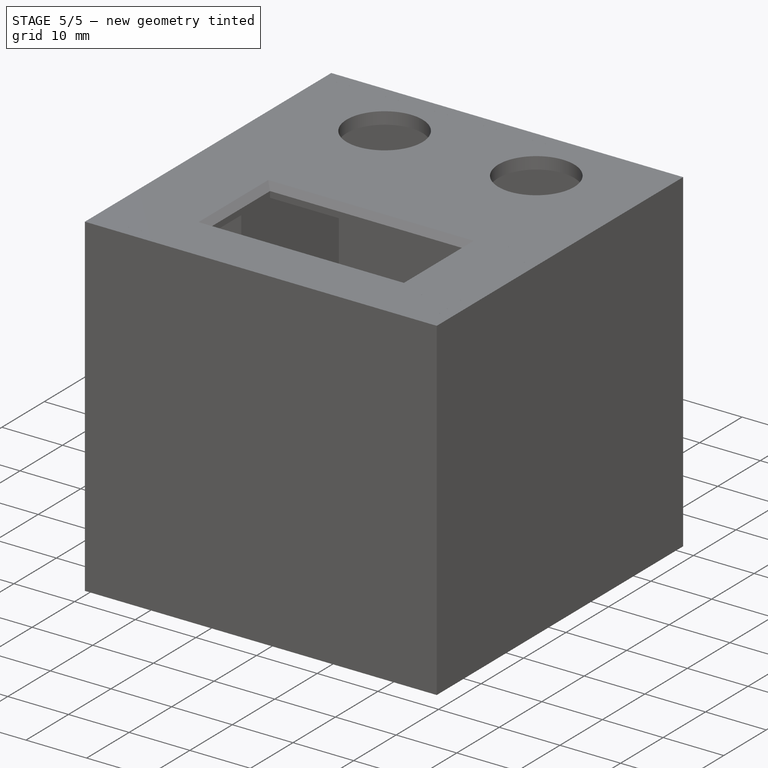
[diagram: stage 5 of 5 — iso view after this stage's code; geometry added in this stage tinted green]
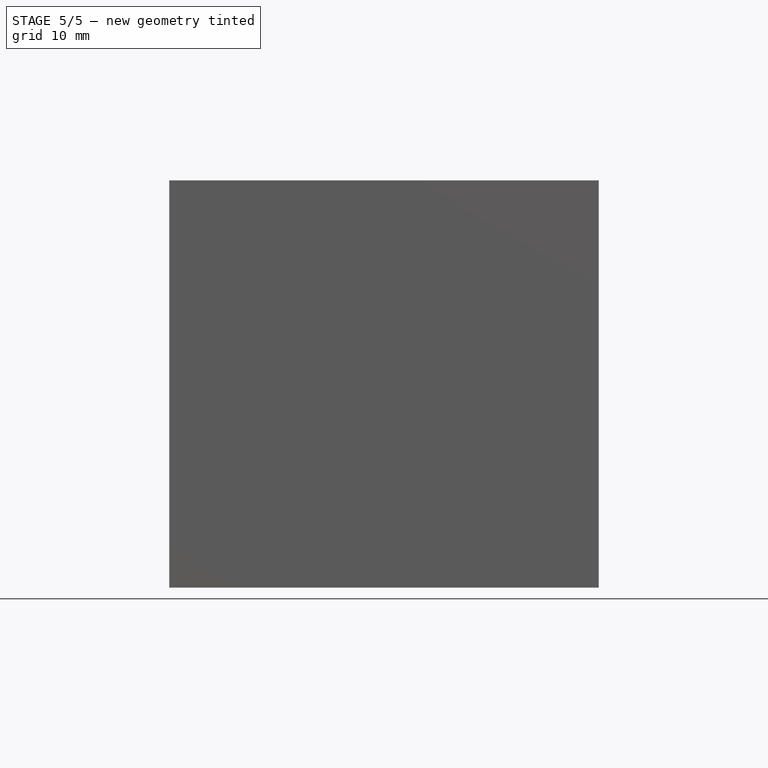
[diagram: stage 5 of 5 — front view after this stage's code; geometry added in this stage tinted green]
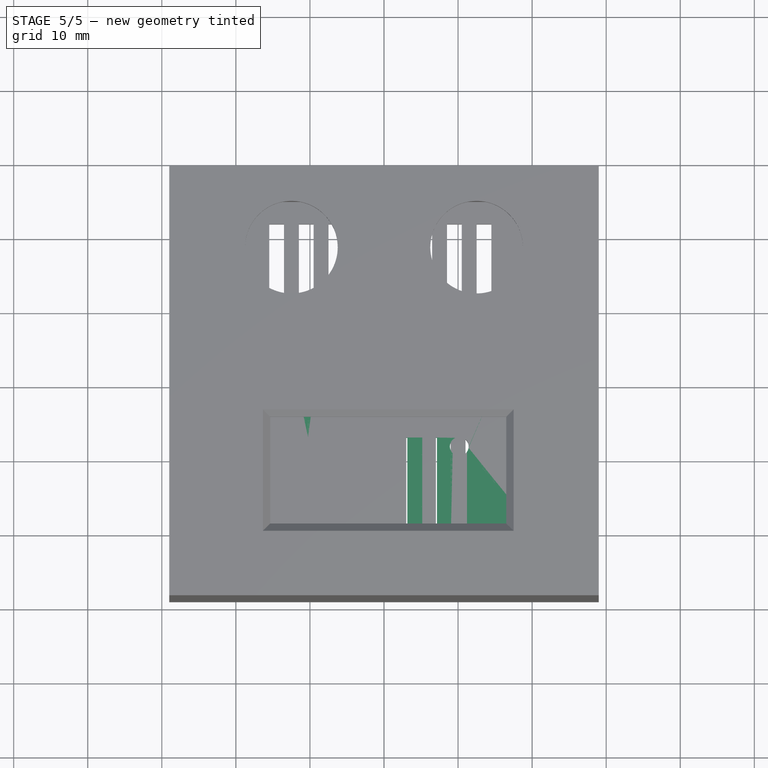
[diagram: stage 5 of 5 — top view after this stage's code; geometry added in this stage tinted green]
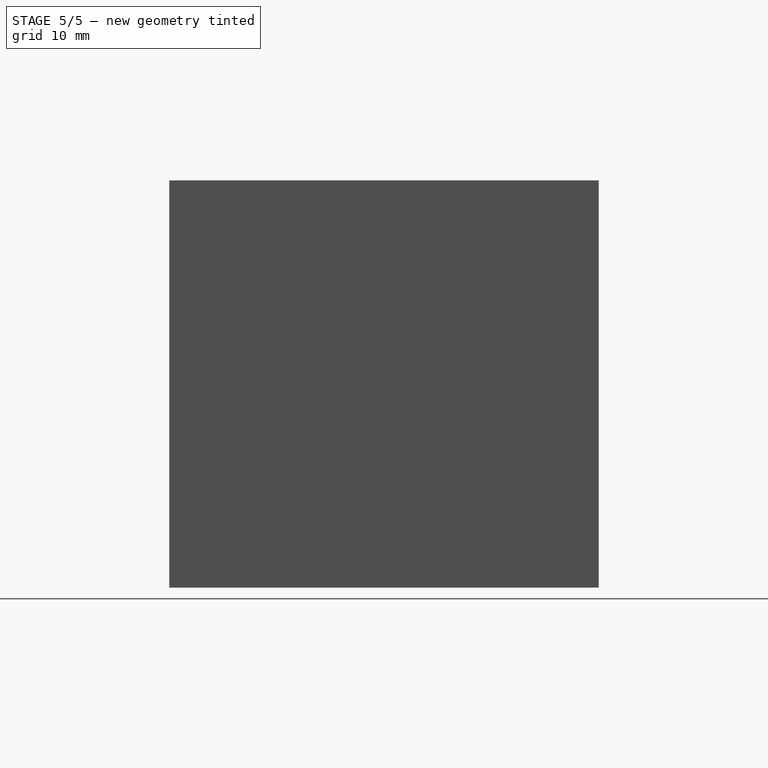
[diagram: stage 5 of 5 — right view after this stage's code; geometry added in this stage tinted green]
FEATURE [Sketcher::SketchObject] Sketch003
  MapMode = 5
  Placement = pos=(0,0,55) rot=(0,0,1;0rad)
  Support = -> [Pad001]
  sketch-geometry (4):
    g0: LineSegment StartX=-27 StartY=27 StartZ=0 EndX=27 EndY=27 EndZ=0
    g1: LineSegment StartX=27 StartY=27 StartZ=0 EndX=27 EndY=-27 EndZ=0
    g2: LineSegment StartX=27 StartY=-27 StartZ=0 EndX=-27 EndY=-27 EndZ=0
    g3: LineSegment StartX=-27 StartY=-27 StartZ=0 EndX=-27 EndY=27 EndZ=0
  constraints (10):
    c: Coincident(g0,g1)
    c: Coincident(g1,g2)
    c: Coincident(g2,g3)
    c: Coincident(g3,g0)
    c: Horizontal(g2)
    c: Vertical(g1)
    c: Symmetric(g0,g0,g-2)
    c: Symmetric(g0,g2,g-1)
    c: DistanceX(g0,g0) = 54
    c: DistanceY(g2,g0) = 54
FEATURE [PartDesign::Pocket] Pocket001
  BaseFeature = -> Pad001
  Length = 2
  Length2 = 100
  Profile = -> Sketch003
  Refine = true
  Type = 0
FEATURE [Sketcher::SketchObject] Sketch004
  MapMode = 5
  Placement = pos=(0,0,53) rot=(0,0,1;0rad)
  Support = -> [Pocket001]
  sketch-geometry (4):
    g0: LineSegment StartX=-25 StartY=25 StartZ=0 EndX=25 EndY=25 EndZ=0
    g1: LineSegment StartX=25 StartY=25 StartZ=0 EndX=25 EndY=-25 EndZ=0
    g2: LineSegment StartX=25 StartY=-25 StartZ=0 EndX=-25 EndY=-25 EndZ=0
    g3: LineSegment StartX=-25 StartY=-25 StartZ=0 EndX=-25 EndY=25 EndZ=0
  constraints (10):
    c: Coincident(g0,g1)
    c: Coincident(g1,g2)
    c: Coincident(g2,g3)
    c: Coincident(g3,g0)
    c: Horizontal(g2)
    c: Vertical(g1)
    c: Symmetric(g0,g0,g-2)
    c: Symmetric(g0,g2,g-1)
    c: DistanceX(g0,g0) = 50
    c: DistanceY(g2,g0) = 50
FEATURE [PartDesign::Pocket] Pocket002
  BaseFeature = -> Pocket001
  Length = 50
  Length2 = 100
  Profile = -> Sketch004
  Refine = true
  Type = 0
FEATURE [Sketcher::SketchObject] Sketch005
  MapMode = 5
  Placement = pos=(0,0,3) rot=(0,0,1;0rad)
  Support = -> [Pocket002]
  sketch-geometry (60):
    g0: LineSegment [constr] StartX=-17.5 StartY=22 StartZ=0 EndX=17.5 EndY=22 EndZ=0
    g1: LineSegment [constr] StartX=17.5 StartY=22 StartZ=0 EndX=17.5 EndY=-1 EndZ=0
    g2: LineSegment [constr] StartX=17.5 StartY=-1 StartZ=0 EndX=-17.5 EndY=-1 EndZ=0
    g3: LineSegment [constr] StartX=-17.5 StartY=-1 StartZ=0 EndX=-17.5 EndY=22 EndZ=0
    g4: LineSegment [constr] StartX=-10.16 StartY=-8 StartZ=0 EndX=10.16 EndY=-8 EndZ=0
    g5: LineSegment [constr] StartX=10.16 StartY=-8 StartZ=0 EndX=10.16 EndY=-20.7 EndZ=0
    g6: LineSegment [constr] StartX=10.16 StartY=-20.7 StartZ=0 EndX=-10.16 EndY=-20.7 EndZ=0
    g7: LineSegment [constr] StartX=-10.16 StartY=-20.7 StartZ=0 EndX=-10.16 EndY=-8 EndZ=0
    g8: Circle CenterX=-10.16 CenterY=-8 CenterZ=0 NormalX=0 NormalY=0 NormalZ=1 AngleXU=0 Radius=1.27
    g9: Circle CenterX=10.16 CenterY=-8 CenterZ=0 NormalX=0 NormalY=0 NormalZ=1 AngleXU=0 Radius=1.27
    g10: Circle CenterX=-10.16 CenterY=-20.7 CenterZ=0 NormalX=0 NormalY=0 NormalZ=1 AngleXU=0 Radius=1.27
    g11: Circle CenterX=10.16 CenterY=-20.7 CenterZ=0 NormalX=0 NormalY=0 NormalZ=1 AngleXU=0 Radius=1.27
    g12: LineSegment StartX=7.16 StartY=-21.8 StartZ=0 EndX=5.16 EndY=-21.8 EndZ=0
    g13: LineSegment StartX=5.16 StartY=-21.8 StartZ=0 EndX=5.16 EndY=-6.8 EndZ=0
    g14: LineSegment StartX=5.16 StartY=-6.8 StartZ=0 EndX=7.16 EndY=-6.8 EndZ=0
    g15: LineSegment StartX=7.16 StartY=-6.8 StartZ=0 EndX=7.16 EndY=-21.8 EndZ=0
    g16: LineSegment StartX=1.16 StartY=-6.8 StartZ=0 EndX=3.16 EndY=-6.8 EndZ=0
    g17: LineSegment StartX=3.16 StartY=-6.8 StartZ=0 EndX=3.16 EndY=-21.8 EndZ=0
    g18: LineSegment StartX=3.16 StartY=-21.8 StartZ=0 EndX=1.16 EndY=-21.8 EndZ=0
    g19: LineSegment StartX=1.16 StartY=-21.8 StartZ=0 EndX=1.16 EndY=-6.8 EndZ=0
    g20: LineSegment StartX=-2.84 StartY=-6.8 StartZ=0 EndX=-0.84 EndY=-6.8 EndZ=0
    g21: LineSegment StartX=-0.84 StartY=-6.8 StartZ=0 EndX=-0.84 EndY=-21.8 EndZ=0
    g22: LineSegment StartX=-0.84 StartY=-21.8 StartZ=0 EndX=-2.84 EndY=-21.8 EndZ=0
    g23: LineSegment StartX=-2.84 StartY=-21.8 StartZ=0 EndX=-2.84 EndY=-6.8 EndZ=0
    g24: LineSegment StartX=-6.84 StartY=-6.8 StartZ=0 EndX=-4.84 EndY=-6.8 EndZ=0
    g25: LineSegment StartX=-4.84 StartY=-6.8 StartZ=0 EndX=-4.84 EndY=-21.8 EndZ=0
    g26: LineSegment StartX=-4.84 StartY=-21.8 StartZ=0 EndX=-6.84 EndY=-21.8 EndZ=0
    g27: LineSegment StartX=-6.84 StartY=-21.8 StartZ=0 EndX=-6.84 EndY=-6.8 EndZ=0
    g28: LineSegment StartX=12.5 StartY=22 StartZ=0 EndX=14.5 EndY=22 EndZ=0
    g29: LineSegment StartX=14.5 StartY=22 StartZ=0 EndX=14.5 EndY=-1 EndZ=0
    g30: LineSegment StartX=14.5 StartY=-1 StartZ=0 EndX=12.5 EndY=-1 EndZ=0
    g31: LineSegment StartX=12.5 StartY=-1 StartZ=0 EndX=12.5 EndY=22 EndZ=0
    g32: LineSegment StartX=8.5 StartY=22 StartZ=0 EndX=10.5 EndY=22 EndZ=0
    g33: LineSegment StartX=10.5 StartY=22 StartZ=0 EndX=10.5 EndY=-1 EndZ=0
    g34: LineSegment StartX=10.5 StartY=-1 StartZ=0 EndX=8.5 EndY=-1 EndZ=0
    g35: LineSegment StartX=8.5 StartY=-1 StartZ=0 EndX=8.5 EndY=22 EndZ=0
    g36: LineSegment StartX=4.5 StartY=22 StartZ=0 EndX=6.5 EndY=22 EndZ=0
    g37: LineSegment StartX=6.5 StartY=22 StartZ=0 EndX=6.5 EndY=-1 EndZ=0
    g38: LineSegment StartX=6.5 StartY=-1 StartZ=0 EndX=4.5 EndY=-1 EndZ=0
    g39: LineSegment StartX=4.5 StartY=-1 StartZ=0 EndX=4.5 EndY=22 EndZ=0
    g40: LineSegment StartX=0.5 StartY=22 StartZ=0 EndX=2.5 EndY=22 EndZ=0
    g41: LineSegment StartX=2.5 StartY=22 StartZ=0 EndX=2.5 EndY=-1 EndZ=0
    g42: LineSegment StartX=2.5 StartY=-1 StartZ=0 EndX=0.5 EndY=-1 EndZ=0
    g43: LineSegment StartX=0.5 StartY=-1 StartZ=0 EndX=0.5 EndY=22 EndZ=0
    g44: LineSegment StartX=-3.5 StartY=22 StartZ=0 EndX=-1.5 EndY=22 EndZ=0
    g45: LineSegment StartX=-1.5 StartY=22 StartZ=0 EndX=-1.5 EndY=-1 EndZ=0
    g46: LineSegment StartX=-1.5 StartY=-1 StartZ=0 EndX=-3.5 EndY=-1 EndZ=0
    g47: LineSegment StartX=-3.5 StartY=-1 StartZ=0 EndX=-3.5 EndY=22 EndZ=0
    g48: LineSegment StartX=-7.5 StartY=22 StartZ=0 EndX=-5.5 EndY=22 EndZ=0
    g49: LineSegment StartX=-5.5 StartY=22 StartZ=0 EndX=-5.5 EndY=-1 EndZ=0
    g50: LineSegment StartX=-5.5 StartY=-1 StartZ=0 EndX=-7.5 EndY=-1 EndZ=0
    g51: LineSegment StartX=-7.5 StartY=-1 StartZ=0 EndX=-7.5 EndY=22 EndZ=0
    g52: LineSegment StartX=-11.5 StartY=22 StartZ=0 EndX=-9.5 EndY=22 EndZ=0
    g53: LineSegment StartX=-9.5 StartY=22 StartZ=0 EndX=-9.5 EndY=-1 EndZ=0
    g54: LineSegment StartX=-9.5 StartY=-1 StartZ=0 EndX=-11.5 EndY=-1 EndZ=0
    g55: LineSegment StartX=-11.5 StartY=-1 StartZ=0 EndX=-11.5 EndY=22 EndZ=0
    g56: LineSegment StartX=-15.5 StartY=22 StartZ=0 EndX=-13.5 EndY=22 EndZ=0
    g57: LineSegment StartX=-13.5 StartY=22 StartZ=0 EndX=-13.5 EndY=-1 EndZ=0
    g58: LineSegment StartX=-13.5 StartY=-1 StartZ=0 EndX=-15.5 EndY=-1 EndZ=0
    g59: LineSegment StartX=-15.5 StartY=-1 StartZ=0 EndX=-15.5 EndY=22 EndZ=0
  constraints (175):
    c: Coincident(g0,g1)
    c: Coincident(g1,g2)
    c: Coincident(g2,g3)
    c: Coincident(g3,g0)
    c: Horizontal(g2)
    c: Vertical(g1)
    c: Vertical(g3)
    c: Coincident(g4,g5)
    c: Coincident(g5,g6)
    c: Coincident(g6,g7)
    c: Coincident(g7,g4)
    c: Horizontal(g4)
    c: Vertical(g5)
    c: Vertical(g7)
    c: DistanceY(g5,g4) = 12.7
    c: DistanceX(g4,g4) = 20.32
    c: Coincident(g8,g4)
    c: Coincident(g9,g4)
    c: Coincident(g10,g6)
    c: Coincident(g11,g5)
    c: Equal(g8,g9)
    c: Equal(g8,g10)
    c: Equal(g8,g11)
    c: Diameter(g8) = 2.54
    c: DistanceY(g1,g0) = 23
    c: DistanceX(g0,g0) = 35
    c: Symmetric(g0,g0,g-2)
    c: Symmetric(g10,g11,g-2)
    c: DistanceY(g-1,g0) = 22
    c: DistanceY(g9,g-1) = 8
    c: Coincident(g12,g13)
    c: Coincident(g13,g14)
    c: Coincident(g14,g15)
    c: Coincident(g15,g12)
    c: Horizontal(g12)
    c: Horizontal(g14)
    c: Vertical(g13)
    c: Vertical(g15)
    c: DistanceX(g13,g14) = 2
    c: Coincident(g16,g17)
    c: Coincident(g17,g18)
    c: Coincident(g18,g19)
    c: Coincident(g19,g16)
    c: Horizontal(g16)
    c: Horizontal(g18)
    c: Vertical(g17)
    c: Vertical(g19)
    c: Equal(g14,g16)
    c: Equal(g13,g19)
    c: DistanceX(g16,g13) = 2
    c: DistanceY(g12,g14) = 15
    c: DistanceY(g9,g14) = 1.2
    c: DistanceY(g9,g16) = 1.2
    c: DistanceX(g14,g9) = 3
    c: Coincident(g20,g21)
    c: Coincident(g21,g22)
    c: Coincident(g22,g23)
    c: Coincident(g23,g20)
    c: Horizontal(g20)
    c: Horizontal(g22)
    c: Vertical(g21)
    c: Vertical(g23)
    c: Equal(g19,g21)
    c: Equal(g16,g20)
    c: DistanceX(g20,g16) = 2
    c: DistanceY(g9,g20) = 1.2
    c: Coincident(g24,g25)
    c: Coincident(g25,g26)
    c: Coincident(g26,g27)
    c: Coincident(g27,g24)
    c: Horizontal(g24)
    c: Vertical(g25)
    c: Vertical(g27)
    c: Equal(g24,g22)
    c: Equal(g23,g25)
    c: DistanceX(g24,g20) = 2
    c: DistanceY(g9,g24) = 1.2
    c: Equal(g25,g27)
    c: Coincident(g28,g29)
    c: Coincident(g29,g30)
    c: Coincident(g30,g31)
    c: Coincident(g31,g28)
    c: Horizontal(g28)
    c: Horizontal(g30)
    c: Vertical(g29)
    c: Vertical(g31)
    c: DistanceX(g28,g28) = 2
    c: DistanceY(g29,g28) = 23
    c: DistanceY(g0,g28) = 0
    c: DistanceX(g28,g0) = 3
    c: Coincident(g32,g33)
    c: Coincident(g33,g34)
    c: Coincident(g34,g35)
    c: Coincident(g35,g32)
    c: Horizontal(g32)
    c: Horizontal(g34)
    c: Vertical(g33)
    c: Vertical(g35)
    c: Coincident(g36,g37)
    c: Coincident(g37,g38)
    c: Coincident(g38,g39)
    c: Coincident(g39,g36)
    c: Horizontal(g36)
    c: Horizontal(g38)
    c: Vertical(g37)
    c: Vertical(g39)
    c: Coincident(g40,g41)
    c: Coincident(g41,g42)
    c: Coincident(g42,g43)
    c: Coincident(g43,g40)
    c: Horizontal(g40)
    c: Horizontal(g42)
    c: Vertical(g41)
    c: Vertical(g43)
    c: Coincident(g44,g45)
    c: Coincident(g45,g46)
    c: Coincident(g46,g47)
    c: Coincident(g47,g44)
    c: Horizontal(g44)
    c: Horizontal(g46)
    c: Vertical(g45)
    c: Vertical(g47)
    c: Equal(g28,g32)
    c: Equal(g28,g36)
    c: Equal(g28,g40)
    c: Equal(g28,g44)
    c: Equal(g31,g33)
    c: Equal(g31,g37)
    c: Equal(g31,g41)
    c: Equal(g31,g45)
    c: DistanceY(g0,g32) = 0
    c: DistanceX(g40,g36) = 2
    c: DistanceX(g36,g32) = 2
    c: DistanceX(g32,g28) = 2
    c: DistanceX(g44,g40) = 2
    c: DistanceY(g0,g36) = 0
    c: DistanceY(g0,g44) = 0
    c: Coincident(g48,g49)
    c: Coincident(g49,g50)
    c: Coincident(g50,g51)
    c: Coincident(g51,g48)
    c: Horizontal(g48)
    c: Horizontal(g50)
    c: Vertical(g49)
    c: Vertical(g51)
    c: Coincident(g52,g53)
    c: Coincident(g53,g54)
    c: Coincident(g54,g55)
    c: Coincident(g55,g52)
    c: Horizontal(g52)
    c: Horizontal(g54)
    c: Vertical(g53)
    c: Vertical(g55)
    c: Coincident(g56,g57)
    c: Coincident(g57,g58)
    c: Coincident(g58,g59)
    c: Coincident(g59,g56)
    c: Horizontal(g56)
    c: Horizontal(g58)
    c: Vertical(g57)
    c: Vertical(g59)
    c: Equal(g48,g44)
    c: DistanceY(g36,g40) = 0
    c: Equal(g44,g48)
    c: Equal(g44,g52)
    c: Equal(g44,g56)
    c: DistanceX(g48,g44) = 2
    c: DistanceX(g52,g48) = 2
    c: DistanceX(g56,g52) = 2
    c: DistanceY(g44,g48) = 0
    c: DistanceY(g48,g52) = 0
    c: DistanceY(g52,g56) = 0
    c: Equal(g47,g49)
    c: Equal(g47,g53)
    c: Equal(g47,g57)
FEATURE [PartDesign::Pocket] Pocket003
  BaseFeature = -> Pocket002
  Length = 3
  Length2 = 100
  Profile = -> Sketch005
  Refine = true
  Type = 0
FEATURE [Part::FeaturePython] XOR  # WARN: FeaturePython — macro-defined, semantics opaque (R4)
  Objects = -> [Box,Body001]
  Tolerance = 0
FEATURE [Part::FeaturePython] XOR001  # WARN: FeaturePython — macro-defined, semantics opaque (R4)
  Objects = -> [Box001,XOR]
  Tolerance = 0
FEATURE [Part::FeaturePython] XOR002  label="Case"  # WARN: FeaturePython — macro-defined, semantics opaque (R4)
  Objects = -> [Box002,XOR001]
  Tolerance = 0
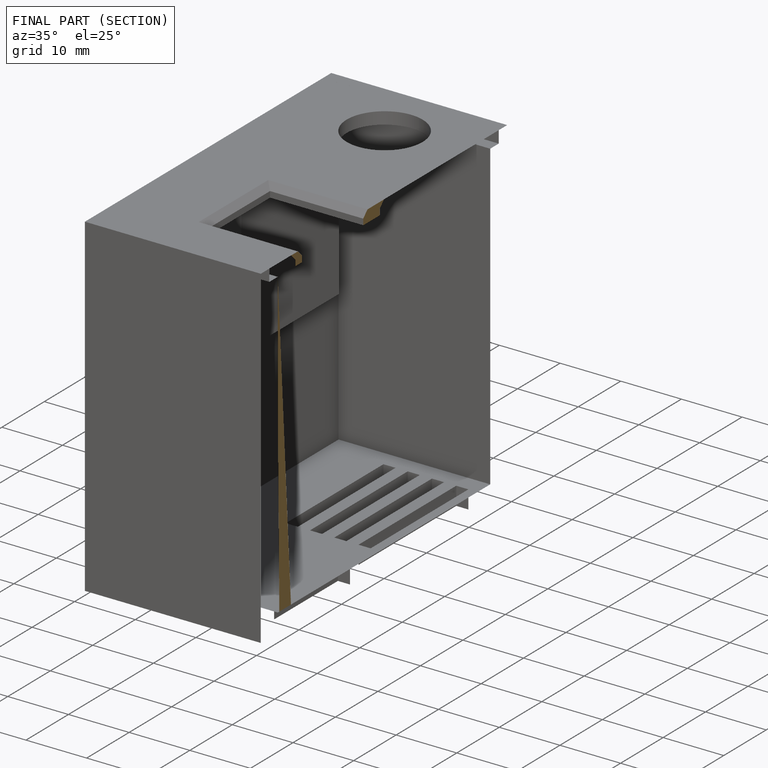
[diagram: finished part — half-section view (interior)]
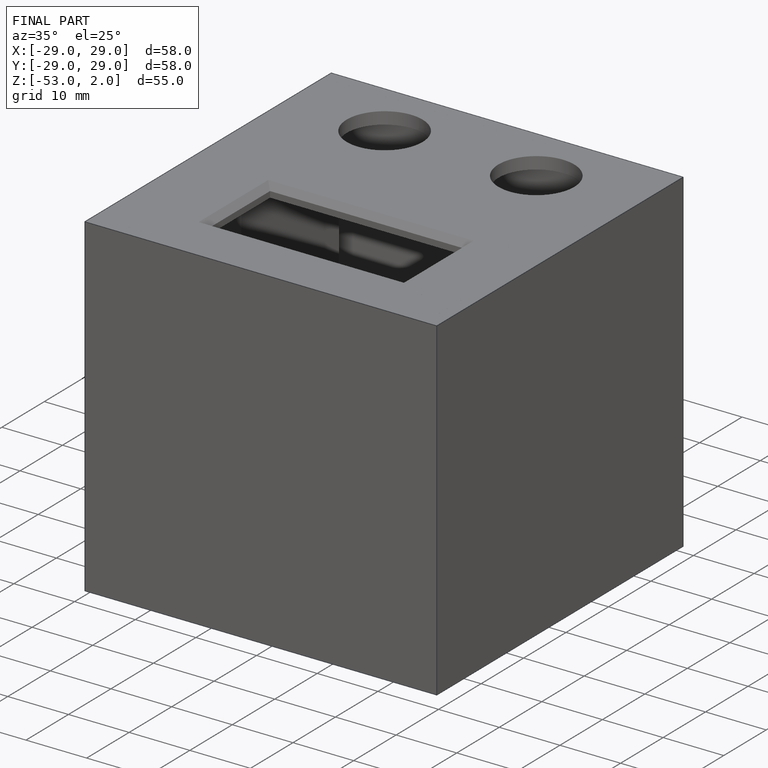
[diagram: finished part — iso view with bounding-box wireframe]
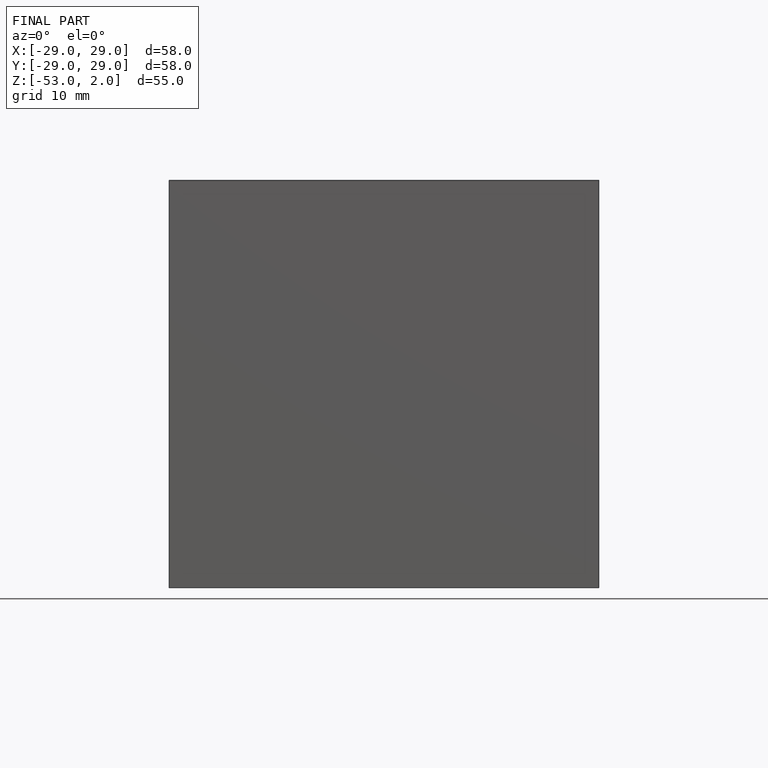
[diagram: finished part — front view with bounding-box wireframe]
